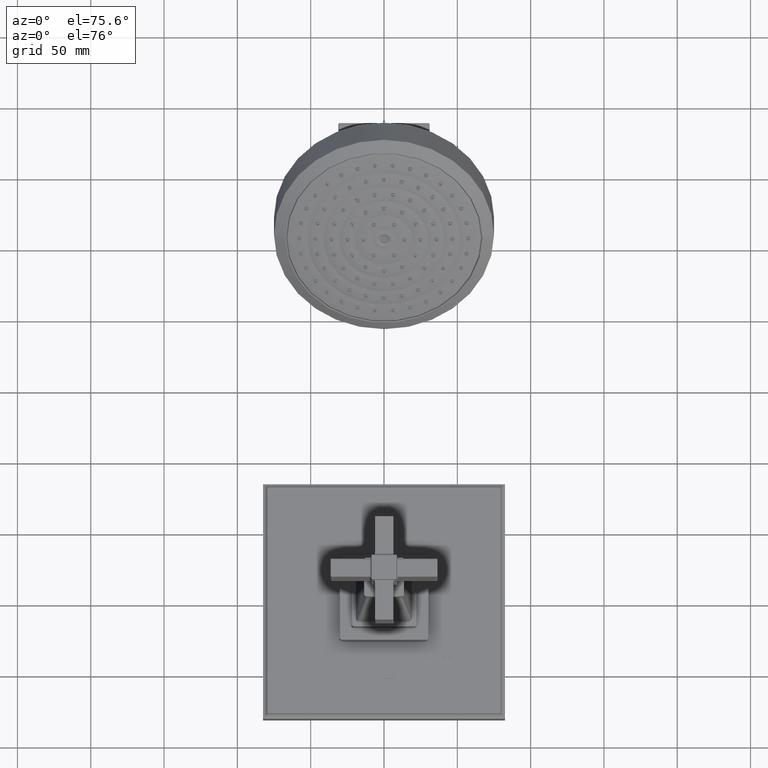
[diagram: clean part render]
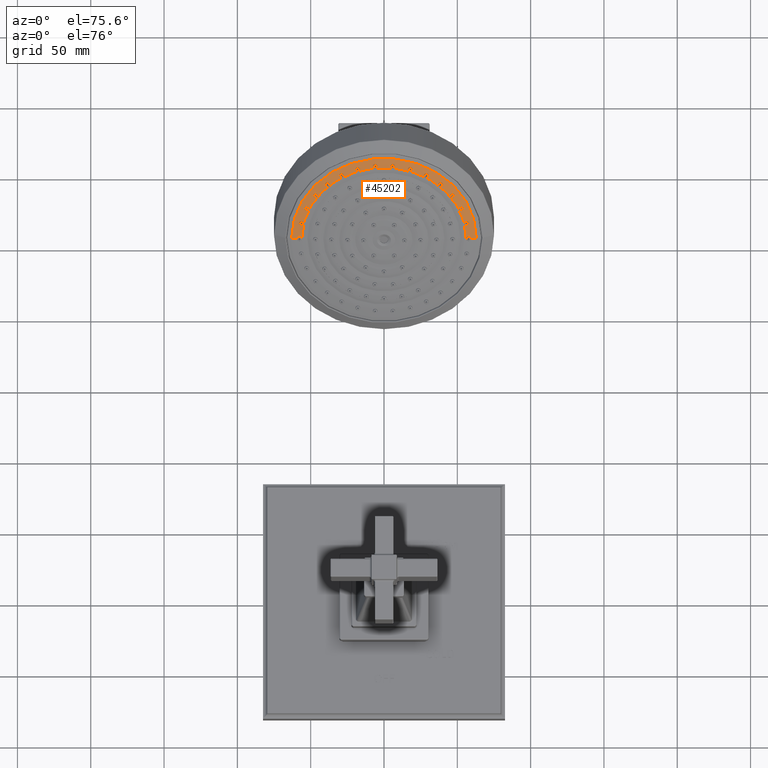
[diagram: same view with one face highlighted and labeled with its STEP entity id]
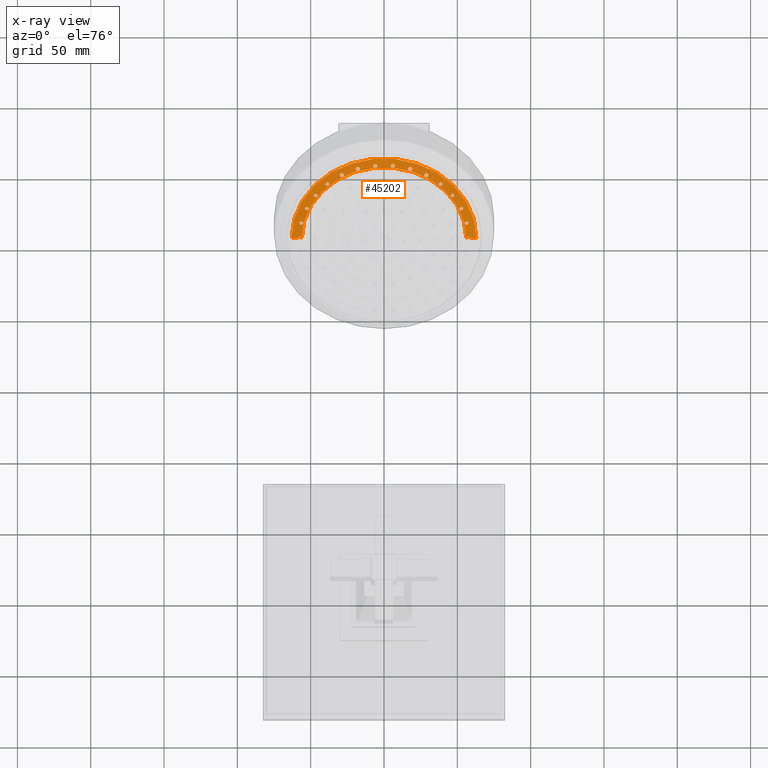
[diagram: x-ray of the same camera — body ghosted, the highlighted face saturated]
A machine part, auxiliary view. The second image highlights one B-rep face of the part: STEP entity #45202.
The next image is the same camera in x-ray: the body ghosted, the highlighted face saturated — about 0% of this face is hidden behind the body in this view.
In plain terms, the highlighted spherical surface has radius 619.733 mm.
Its self-contained STEP definition (entity closure, byte-faithful):
#27208=CARTESIAN_POINT('',(2.328477119466E0,8.441893513652E0,6.532980220501E0));
#27209=CARTESIAN_POINT('',(2.328477119466E0,8.444435503290E0,6.535522210139E0));
#27210=CARTESIAN_POINT('',(2.327806115332E0,8.449476790462E0,6.540652205004E0));
#27211=CARTESIAN_POINT('',(2.324834056388E0,8.456635144010E0,6.548203465920E0));
#27212=CARTESIAN_POINT('',(2.319964986621E0,8.463184328624E0,6.555396333552E0));
#27213=CARTESIAN_POINT('',(2.313413647380E0,8.468841618428E0,6.561919680344E0));
#27214=CARTESIAN_POINT('',(2.305325734597E0,8.473468261867E0,6.567615478009E0));
#27215=CARTESIAN_POINT('',(2.296083094937E0,8.476847508245E0,6.572216482481E0));
#27216=CARTESIAN_POINT('',(2.285864665380E0,8.478903752162E0,6.575623419795E0));
#27217=CARTESIAN_POINT('',(2.275202265711E0,8.479532453174E0,6.577661441558E0));
#27218=CARTESIAN_POINT('',(2.264289107166E0,8.478721594559E0,6.578292987154E0));
#27219=CARTESIAN_POINT('',(2.253753948990E0,8.476534532096E0,6.577498309646E0));
#27220=CARTESIAN_POINT('',(2.243761053883E0,8.473036831576E0,6.575321272639E0));
#27221=CARTESIAN_POINT('',(2.234803017807E0,8.468427629690E0,6.571895923105E0));
#27222=CARTESIAN_POINT('',(2.226986869612E0,8.462793338096E0,6.567294543557E0));
#27223=CARTESIAN_POINT('',(2.220640695689E0,8.456366037302E0,6.561705872905E0));
#27224=CARTESIAN_POINT('',(2.215903240440E0,8.449276901317E0,6.555242765606E0));
#27225=CARTESIAN_POINT('',(2.212997526472E0,8.441821033598E0,6.548170866246E0));
#27226=CARTESIAN_POINT('',(2.212336959181E0,8.436740872901E0,6.543177993917E0));
#27227=CARTESIAN_POINT('',(2.212336959181E0,8.434218306568E0,6.540655427585E0));
#27229=CARTESIAN_POINT('',(0.E0,2.561579682271E1,-1.064092308856E1));
#27230=DIRECTION('',(0.E0,-7.071067811865E-1,-7.071067811865E-1));
#27231=DIRECTION('',(9.067352907339E-2,-7.041939758069E-1,7.041939758069E-1));
#27232=AXIS2_PLACEMENT_3D('',#27229,#27230,#27231);
#27234=CARTESIAN_POINT('',(0.E0,8.434124516782E0,6.540749217371E0));
#27235=DIRECTION('',(0.E0,7.071067811865E-1,-7.071067811865E-1));
#27236=DIRECTION('',(-1.E0,0.E0,0.E0));
#27237=AXIS2_PLACEMENT_3D('',#27234,#27235,#27236);
#27239=CARTESIAN_POINT('',(0.E0,2.561579682271E1,-1.064092308856E1));
#27240=DIRECTION('',(0.E0,7.071067811865E-1,7.071067811865E-1));
#27241=DIRECTION('',(-9.067352907339E-2,-7.041939758069E-1,7.041939758069E-1));
#27242=AXIS2_PLACEMENT_3D('',#27239,#27240,#27241);
#27244=CARTESIAN_POINT('',(-2.212336959181E0,8.434218306568E0,
6.540655427585E0));
#27245=CARTESIAN_POINT('',(-2.212336959181E0,8.436754485402E0,
6.543191606418E0));
#27246=CARTESIAN_POINT('',(-2.213004631525E0,8.441859674237E0,
6.548208568015E0));
#27247=CARTESIAN_POINT('',(-2.215935978697E0,8.449343427930E0,
6.555304966088E0));
#27248=CARTESIAN_POINT('',(-2.220705462538E0,8.456446622154E0,
6.561777899108E0));
#27249=CARTESIAN_POINT('',(-2.227080226650E0,8.462872815793E0,
6.567361684214E0));
#27250=CARTESIAN_POINT('',(-2.234905809169E0,8.468489182058E0,
6.571943891260E0));
#27251=CARTESIAN_POINT('',(-2.243850190294E0,8.473072666446E0,
6.575345327376E0));
#27252=CARTESIAN_POINT('',(-2.253792355567E0,8.476542447435E0,
6.577501148962E0));
#27253=CARTESIAN_POINT('',(-2.264279568201E0,8.478718521362E0,
6.578291174632E0));
#27254=CARTESIAN_POINT('',(-2.275162001075E0,8.479531218379E0,
6.577665528660E0));
#27255=CARTESIAN_POINT('',(-2.285819265773E0,8.478909986157E0,
6.575635654701E0));
#27256=CARTESIAN_POINT('',(-2.296056166893E0,8.476855624396E0,
6.572228158128E0));
#27257=CARTESIAN_POINT('',(-2.305304358108E0,8.473478331604E0,
6.567628373497E0));
#27258=CARTESIAN_POINT('',(-2.313400544725E0,8.468851124383E0,
6.561930918393E0));
#27259=CARTESIAN_POINT('',(-2.319955379506E0,8.463194843844E0,
6.555408118805E0));
#27260=CARTESIAN_POINT('',(-2.324830308222E0,8.456642597383E0,
6.548211414803E0));
#27261=CARTESIAN_POINT('',(-2.327805382546E0,8.449480764633E0,
6.540656276050E0));
#27262=CARTESIAN_POINT('',(-2.328477119466E0,8.444436817590E0,
6.535523524440E0));
#27263=CARTESIAN_POINT('',(-2.328477119466E0,8.441893513652E0,
6.532980220501E0));
#27265=CARTESIAN_POINT('',(0.E0,2.561579682271E1,-1.064092308856E1));
#27266=DIRECTION('',(0.E0,7.071067811865E-1,7.071067811865E-1));
#27267=DIRECTION('',(-1.015786266074E-1,-7.034492812622E-1,7.034492812622E-1));
#27268=AXIS2_PLACEMENT_3D('',#27265,#27266,#27267);
#27270=CARTESIAN_POINT('',(0.E0,8.452388055572E0,6.522485678581E0));
#27271=DIRECTION('',(0.E0,-7.071067811865E-1,7.071067811865E-1));
#27272=DIRECTION('',(1.E0,0.E0,0.E0));
#27273=AXIS2_PLACEMENT_3D('',#27270,#27271,#27272);
#27275=CARTESIAN_POINT('',(0.E0,2.561579682271E1,-1.064092308856E1));
#27276=DIRECTION('',(0.E0,-7.071067811865E-1,-7.071067811865E-1));
#27277=DIRECTION('',(1.015786266074E-1,-7.034492812622E-1,7.034492812622E-1));
#27278=AXIS2_PLACEMENT_3D('',#27275,#27276,#27277);
#27280=CARTESIAN_POINT('',(-2.278863152143E0,8.775534252834E0,
6.866791061071E0));
#27281=CARTESIAN_POINT('',(-2.278857876825E0,8.772943035902E0,
6.864299316494E0));
#27282=CARTESIAN_POINT('',(-2.278176528631E0,8.767715426132E0,
6.859357461444E0));
#27283=CARTESIAN_POINT('',(-2.275188766665E0,8.760025461656E0,
6.852339689718E0));
#27284=CARTESIAN_POINT('',(-2.270300429807E0,8.752705363793E0,
6.845918737637E0));
#27285=CARTESIAN_POINT('',(-2.263737582073E0,8.746081629026E0,
6.840379962929E0));
#27286=CARTESIAN_POINT('',(-2.255626437079E0,8.740298572130E0,
6.835846152770E0));
#27287=CARTESIAN_POINT('',(-2.246372759441E0,8.735644335714E0,
6.832542985617E0));
#27288=CARTESIAN_POINT('',(-2.236129616652E0,8.732207849790E0,
6.830536576950E0));
#27289=CARTESIAN_POINT('',(-2.225482638612E0,8.730179739218E0,
6.829936008384E0));
#27290=CARTESIAN_POINT('',(-2.214615155125E0,8.729580397272E0,
6.830737648088E0));
#27291=CARTESIAN_POINT('',(-2.204146740365E0,8.730418057847E0,
6.832870854077E0));
#27292=CARTESIAN_POINT('',(-2.194205656788E0,8.732646927383E0,
6.836275326629E0));
#27293=CARTESIAN_POINT('',(-2.185260117267E0,8.736144169929E0,
6.840773555681E0));
#27294=CARTESIAN_POINT('',(-2.177422865008E0,8.740853061925E0,
6.846296699847E0));
#27295=CARTESIAN_POINT('',(-2.171058194178E0,8.746569268335E0,
6.852602035489E0));
#27296=CARTESIAN_POINT('',(-2.166304570201E0,8.753178217376E0,
6.859561813062E0));
#27297=CARTESIAN_POINT('',(-2.163393418759E0,8.760391719248E0,
6.866869491267E0));
#27298=CARTESIAN_POINT('',(-2.162728382609E0,8.765466681006E0,
6.871835349612E0));
#27299=CARTESIAN_POINT('',(-2.162723242490E0,8.768026784161E0,
6.874298529744E0));
#27301=CARTESIAN_POINT('',(-2.162723242490E0,8.768026784161E0,
6.874298529744E0));
#27302=CARTESIAN_POINT('',(-2.162718048165E0,8.770613884957E0,
6.876787685412E0));
#27303=CARTESIAN_POINT('',(-2.163376795794E0,8.775814311888E0,
6.881706380982E0));
#27304=CARTESIAN_POINT('',(-2.166280436191E0,8.783410245048E0,
6.888644636668E0));
#27305=CARTESIAN_POINT('',(-2.171005844578E0,8.790614388449E0,
6.894975026809E0));
#27306=CARTESIAN_POINT('',(-2.177325363493E0,8.797135042191E0,
6.900445821380E0));
#27307=CARTESIAN_POINT('',(-2.185125845645E0,8.802860767991E0,
6.904964161515E0));
#27308=CARTESIAN_POINT('',(-2.194076543171E0,8.807544716798E0,
6.908334534297E0));
#27309=CARTESIAN_POINT('',(-2.204091531377E0,8.811101000279E0,
6.910485209834E0));
#27310=CARTESIAN_POINT('',(-2.214651711421E0,8.813312127039E0,
6.911272810048E0));
#27311=CARTESIAN_POINT('',(-2.225594662814E0,8.814112018768E0,
6.910654372814E0));
#27312=CARTESIAN_POINT('',(-2.236268627209E0,8.813439449964E0,
6.908653671403E0));
#27313=CARTESIAN_POINT('',(-2.246499509594E0,8.811308696344E0,
6.905306529519E0));
#27314=CARTESIAN_POINT('',(-2.255737624275E0,8.807835307757E0,
6.900793825323E0));
#27315=CARTESIAN_POINT('',(-2.263831786681E0,8.803085999198E0,
6.895198923055E0));
#27316=CARTESIAN_POINT('',(-2.270375351262E0,8.797297292027E0,
6.888800920900E0));
#27317=CARTESIAN_POINT('',(-2.275241902649E0,8.790596359481E0,
6.881738191048E0));
#27318=CARTESIAN_POINT('',(-2.278205217365E0,8.783281757393E0,
6.874326608865E0));
#27319=CARTESIAN_POINT('',(-2.278868438505E0,8.778130894334E0,
6.869288021975E0));
#27320=CARTESIAN_POINT('',(-2.278863152143E0,8.775534252834E0,
6.866791061071E0));
#27322=CARTESIAN_POINT('',(-2.132189635155E0,9.094423345217E0,
7.186182711616E0));
#27323=CARTESIAN_POINT('',(-2.132179310588E0,9.091782221245E0,
7.183736269546E0));
#27324=CARTESIAN_POINT('',(-2.131486704708E0,9.086458087394E0,
7.178882744135E0));
#27325=CARTESIAN_POINT('',(-2.128478079866E0,9.078637794073E0,
7.171985354978E0));
#27326=CARTESIAN_POINT('',(-2.123565713663E0,9.071207905476E0,
7.165671224679E0));
#27327=CARTESIAN_POINT('',(-2.116976147033E0,9.064499581912E0,
7.160220884095E0));
#27328=CARTESIAN_POINT('',(-2.108839071673E0,9.058662025893E0,
7.155757504920E0));
#27329=CARTESIAN_POINT('',(-2.099566796421E0,9.053987523990E0,
7.152503991096E0));
#27330=CARTESIAN_POINT('',(-2.089322917228E0,9.050565809677E0,
7.150524468867E0));
#27331=CARTESIAN_POINT('',(-2.078705271560E0,9.048582104250E0,
7.149921054950E0));
#27332=CARTESIAN_POINT('',(-2.067893177993E0,9.048044628581E0,
7.150680519092E0));
#27333=CARTESIAN_POINT('',(-2.057473876924E0,9.048953027215E0,
7.152734241407E0));
#27334=CARTESIAN_POINT('',(-2.047559565893E0,9.051267089016E0,
7.156031921595E0));
#27335=CARTESIAN_POINT('',(-2.038612237945E0,9.054871216387E0,
7.160412710523E0));
#27336=CARTESIAN_POINT('',(-2.030760230893E0,9.059712871484E0,
7.165813005938E0));
#27337=CARTESIAN_POINT('',(-2.024389194391E0,9.065572378201E0,
7.171984378082E0));
#27338=CARTESIAN_POINT('',(-2.019638546927E0,9.072320904372E0,
7.178791221384E0));
#27339=CARTESIAN_POINT('',(-2.016728623112E0,9.079668242728E0,
7.185938956302E0));
#27340=CARTESIAN_POINT('',(-2.016060445526E0,9.084817903463E0,
7.190789229602E0));
#27341=CARTESIAN_POINT('',(-2.016050434053E0,9.087411754414E0,
7.193194302419E0));
#27343=CARTESIAN_POINT('',(-2.016050434053E0,9.087411754414E0,
7.193194302419E0));
#27344=CARTESIAN_POINT('',(-2.016040309278E0,9.090034960816E0,
7.195626594225E0));
#27345=CARTESIAN_POINT('',(-2.016684050027E0,9.095304040304E0,
7.200434959713E0));
#27346=CARTESIAN_POINT('',(-2.019545559929E0,9.102985953221E0,
7.207221522580E0));
#27347=CARTESIAN_POINT('',(-2.024216763425E0,9.110275985612E0,
7.213434398899E0));
#27348=CARTESIAN_POINT('',(-2.030496305211E0,9.116893635210E0,
7.218837032801E0));
#27349=CARTESIAN_POINT('',(-2.038295019332E0,9.122721772148E0,
7.223331229856E0));
#27350=CARTESIAN_POINT('',(-2.047285442437E0,9.127490698036E0,
7.226705122432E0));
#27351=CARTESIAN_POINT('',(-2.057368134030E0,9.131094637296E0,
7.228872242404E0));
#27352=CARTESIAN_POINT('',(-2.067985890445E0,9.133302234053E0,
7.229682994975E0));
#27353=CARTESIAN_POINT('',(-2.078957763639E0,9.134054917372E0,
7.229104154994E0));
#27354=CARTESIAN_POINT('',(-2.089637499782E0,9.133305383750E0,
7.227167076086E0));
#27355=CARTESIAN_POINT('',(-2.099863566193E0,9.131074663524E0,
7.223910056021E0));
#27356=CARTESIAN_POINT('',(-2.109095294273E0,9.127483897774E0,
7.219508279675E0));
#27357=CARTESIAN_POINT('',(-2.117186343462E0,9.122598783128E0,
7.214039672325E0));
#27358=CARTESIAN_POINT('',(-2.123726171439E0,9.116662393630E0,
7.207777277876E0));
#27359=CARTESIAN_POINT('',(-2.128586626269E0,9.109807605079E0,
7.200859155380E0));
#27360=CARTESIAN_POINT('',(-2.131544601479E0,9.102330428564E0,
7.193585590012E0));
#27361=CARTESIAN_POINT('',(-2.132199991122E0,9.097072501609E0,
7.188636594022E0));
#27362=CARTESIAN_POINT('',(-2.132189635155E0,9.094423345217E0,
7.186182711616E0));
#27364=CARTESIAN_POINT('',(-1.894866951678E0,9.384624247255E0,
7.477195784408E0));
#27365=CARTESIAN_POINT('',(-1.894852010633E0,9.381934120107E0,
7.474787388315E0));
#27366=CARTESIAN_POINT('',(-1.894147187642E0,9.376518191976E0,
7.470007055926E0));
#27367=CARTESIAN_POINT('',(-1.891115523609E0,9.368585583035E0,
7.463208044806E0));
#27368=CARTESIAN_POINT('',(-1.886174975050E0,9.361067463171E0,
7.456973817283E0));
#27369=CARTESIAN_POINT('',(-1.879553908493E0,9.354300590398E0,
7.451582893275E0));
#27370=CARTESIAN_POINT('',(-1.871378758973E0,9.348435248593E0,
7.447157078593E0));
#27371=CARTESIAN_POINT('',(-1.862093661971E0,9.343780701737E0,
7.443928405912E0));
#27372=CARTESIAN_POINT('',(-1.851878977E0,9.340416842048E0,7.441950169241E0));
#27373=CARTESIAN_POINT('',(-1.841322692185E0,9.338509448656E0,
7.441311296876E0));
#27374=CARTESIAN_POINT('',(-1.830581147384E0,9.338054129856E0,
7.441992022715E0));
#27375=CARTESIAN_POINT('',(-1.820193008914E0,9.339051127530E0,
7.443937985711E0));
#27376=CARTESIAN_POINT('',(-1.810277784794E0,9.341473492908E0,
7.447112947191E0));
#27377=CARTESIAN_POINT('',(-1.801311695970E0,9.345208951480E0,
7.451368075404E0));
#27378=CARTESIAN_POINT('',(-1.793453485381E0,9.350191036292E0,
7.456627747683E0));
#27379=CARTESIAN_POINT('',(-1.787077504747E0,9.356197672300E0,
7.462655081602E0));
#27380=CARTESIAN_POINT('',(-1.782333678859E0,9.363075364219E0,
7.469297371738E0));
#27381=CARTESIAN_POINT('',(-1.779417814162E0,9.370554173361E0,
7.476292938865E0));
#27382=CARTESIAN_POINT('',(-1.778743249589E0,9.375783318765E0,
7.481045948184E0));
#27383=CARTESIAN_POINT('',(-1.778728794520E0,9.378414984818E0,
7.483405046844E0));
#27385=CARTESIAN_POINT('',(-1.778728794520E0,9.378414984818E0,
7.483405046844E0));
#27386=CARTESIAN_POINT('',(-1.778714264181E0,9.381060354422E0,
7.485776429748E0));
#27387=CARTESIAN_POINT('',(-1.779339299174E0,9.386374856212E0,
7.490474189278E0));
#27388=CARTESIAN_POINT('',(-1.782154458518E0,9.394125434652E0,
7.497132369593E0));
#27389=CARTESIAN_POINT('',(-1.786781364841E0,9.401496629391E0,
7.503267016643E0));
#27390=CARTESIAN_POINT('',(-1.793045706060E0,9.408207411194E0,
7.508644020958E0));
#27391=CARTESIAN_POINT('',(-1.800884565934E0,9.414129209685E0,
7.513154568305E0));
#27392=CARTESIAN_POINT('',(-1.809939985662E0,9.418949469747E0,
7.516554931352E0));
#27393=CARTESIAN_POINT('',(-1.820080626091E0,9.422550702437E0,
7.518753170560E0));
#27394=CARTESIAN_POINT('',(-1.830721614156E0,9.424706553972E0,
7.519605800417E0));
#27395=CARTESIAN_POINT('',(-1.841681926753E0,9.425376288918E0,
7.519094690946E0));
#27396=CARTESIAN_POINT('',(-1.852350814072E0,9.424525553268E0,
7.517250995267E0));
#27397=CARTESIAN_POINT('',(-1.862569751584E0,9.422174700026E0,
7.514109033454E0));
#27398=CARTESIAN_POINT('',(-1.871799527076E0,9.418447679290E0,
7.509834523513E0));
#27399=CARTESIAN_POINT('',(-1.879880933497E0,9.413420060341E0,
7.504511314929E0));
#27400=CARTESIAN_POINT('',(-1.886423348256E0,9.407325987352E0,
7.498388769799E0));
#27401=CARTESIAN_POINT('',(-1.891277585213E0,9.400319109761E0,
7.491619657574E0));
#27402=CARTESIAN_POINT('',(-1.894234049583E0,9.392679192246E0,
7.484475844147E0));
#27403=CARTESIAN_POINT('',(-1.894881931182E0,9.387321298833E0,
7.479610379750E0));
#27404=CARTESIAN_POINT('',(-1.894866951678E0,9.384624247255E0,
7.477195784408E0));
#27406=CARTESIAN_POINT('',(-1.577267310327E0,9.633454433225E0,
7.727110965492E0));
#27407=CARTESIAN_POINT('',(-1.577248406150E0,9.630722452709E0,
7.724735445556E0));
#27408=CARTESIAN_POINT('',(-1.576533431855E0,9.625230052689E0,
7.720015657521E0));
#27409=CARTESIAN_POINT('',(-1.573479715799E0,9.617206834573E0,
7.713287198045E0));
#27410=CARTESIAN_POINT('',(-1.568514171915E0,9.609630565914E0,
7.707105693733E0));
#27411=CARTESIAN_POINT('',(-1.561866901109E0,9.602838369307E0,
7.701745439910E0));
#27412=CARTESIAN_POINT('',(-1.553673317971E0,9.596986362538E0,
7.697331075233E0));
#27413=CARTESIAN_POINT('',(-1.544393155141E0,9.592384343219E0,
7.694094146400E0));
#27414=CARTESIAN_POINT('',(-1.534220223140E0,9.589103446246E0,
7.692080532700E0));
#27415=CARTESIAN_POINT('',(-1.523715739306E0,9.587288551893E0,
7.691369905666E0));
#27416=CARTESIAN_POINT('',(-1.513015753984E0,9.586933022132E0,
7.691945255510E0));
#27417=CARTESIAN_POINT('',(-1.502643158158E0,9.588038151696E0,
7.693764489191E0));
#27418=CARTESIAN_POINT('',(-1.492712637333E0,9.590589884472E0,
7.696805906772E0));
#27419=CARTESIAN_POINT('',(-1.483743444644E0,9.594461468625E0,
7.700916294065E0));
#27420=CARTESIAN_POINT('',(-1.475877329515E0,9.599590111895E0,
7.706029298316E0));
#27421=CARTESIAN_POINT('',(-1.469511815995E0,9.605722782056E0,
7.711891878624E0));
#27422=CARTESIAN_POINT('',(-1.464760935757E0,9.612732232611E0,
7.718383879021E0));
#27423=CARTESIAN_POINT('',(-1.461836324587E0,9.620324015546E0,
7.725231580677E0));
#27424=CARTESIAN_POINT('',(-1.461148707857E0,9.625641999011E0,
7.729915792659E0));
#27425=CARTESIAN_POINT('',(-1.461130351981E0,9.628318863384E0,
7.732246535333E0));
#27427=CARTESIAN_POINT('',(-1.461130351981E0,9.628318863384E0,
7.732246535333E0));
#27428=CARTESIAN_POINT('',(-1.461112127908E0,9.630976506868E0,
7.734560542401E0));
#27429=CARTESIAN_POINT('',(-1.461717795436E0,9.636322172264E0,
7.739161886835E0));
#27430=CARTESIAN_POINT('',(-1.464499581596E0,9.644144415386E0,
7.745738201517E0));
#27431=CARTESIAN_POINT('',(-1.469111449144E0,9.651597037907E0,
7.751841524631E0));
#27432=CARTESIAN_POINT('',(-1.475396647797E0,9.658386791561E0,
7.757229648120E0));
#27433=CARTESIAN_POINT('',(-1.483295166470E0,9.664362554685E0,
7.761776036244E0));
#27434=CARTESIAN_POINT('',(-1.492415233092E0,9.669182776257E0,
7.765215901583E0));
#27435=CARTESIAN_POINT('',(-1.502591301300E0,9.672727644506E0,
7.767458693294E0));
#27436=CARTESIAN_POINT('',(-1.513236295701E0,9.674790292576E0,
7.768372982071E0));
#27437=CARTESIAN_POINT('',(-1.524179182204E0,9.675343476680E0,
7.767949224524E0));
#27438=CARTESIAN_POINT('',(-1.534825601186E0,9.674364742561E0,
7.766217058033E0));
#27439=CARTESIAN_POINT('',(-1.545033390848E0,9.671871079513E0,
7.763203037599E0));
#27440=CARTESIAN_POINT('',(-1.554245619455E0,9.667997904468E0,
7.759071063579E0));
#27441=CARTESIAN_POINT('',(-1.562321684431E0,9.662812546790E0,
7.753891353801E0));
#27442=CARTESIAN_POINT('',(-1.568849965010E0,9.656570771203E0,
7.747920492167E0));
#27443=CARTESIAN_POINT('',(-1.573701672004E0,9.649405116064E0,
7.741284445257E0));
#27444=CARTESIAN_POINT('',(-1.576644621329E0,9.641632778145E0,
7.734278395955E0));
#27445=CARTESIAN_POINT('',(-1.577286243977E0,9.636190673115E0,
7.729490189050E0));
#27446=CARTESIAN_POINT('',(-1.577267310327E0,9.633454433225E0,
7.727110965492E0));
#27448=CARTESIAN_POINT('',(-1.193271417773E0,9.830039568523E0,
7.925005023688E0));
#27449=CARTESIAN_POINT('',(-1.193249407421E0,9.827277445309E0,
7.922657931639E0));
#27450=CARTESIAN_POINT('',(-1.192528025328E0,9.821730455133E0,
7.917985812340E0));
#27451=CARTESIAN_POINT('',(-1.189455638224E0,9.813640331002E0,
7.911295134972E0));
#27452=CARTESIAN_POINT('',(-1.184463256244E0,9.806030818871E0,
7.905130424610E0));
#27453=CARTESIAN_POINT('',(-1.177806146485E0,9.799258714675E0,
7.899779436929E0));
#27454=CARTESIAN_POINT('',(-1.169634761804E0,9.793471199538E0,
7.895358118937E0));
#27455=CARTESIAN_POINT('',(-1.160420611517E0,9.788963055923E0,
7.892088295998E0));
#27456=CARTESIAN_POINT('',(-1.150323921144E0,9.785778983816E0,
7.889998193897E0));
#27457=CARTESIAN_POINT('',(-1.139876862872E0,9.784055851247E0,
7.889171670420E0));
#27458=CARTESIAN_POINT('',(-1.129177441546E0,9.783797779513E0,
7.889606253859E0));
#27459=CARTESIAN_POINT('',(-1.118797646598E0,9.785014337318E0,
7.891275128940E0));
#27460=CARTESIAN_POINT('',(-1.108849077293E0,9.787691308337E0,
7.894159395455E0));
#27461=CARTESIAN_POINT('',(-1.099870031347E0,9.791689470084E0,
7.898107776765E0));
#27462=CARTESIAN_POINT('',(-1.091991555490E0,9.796943507730E0,
7.903056726030E0));
#27463=CARTESIAN_POINT('',(-1.085608258834E0,9.803194461464E0,
7.908761929606E0));
#27464=CARTESIAN_POINT('',(-1.080825851047E0,9.810326594408E0,
7.915118507411E0));
#27465=CARTESIAN_POINT('',(-1.077864117677E0,9.818048151808E0,
7.921864940658E0));
#27466=CARTESIAN_POINT('',(-1.077157226723E0,9.823470643664E0,
7.926518696959E0));
#27467=CARTESIAN_POINT('',(-1.077135605822E0,9.826202113269E0,
7.928842478943E0));
#27469=CARTESIAN_POINT('',(-1.077135605822E0,9.826202113269E0,
7.928842478943E0));
#27470=CARTESIAN_POINT('',(-1.077114492562E0,9.828869450220E0,
7.931111700442E0));
#27471=CARTESIAN_POINT('',(-1.077704551834E0,9.834245257997E0,
7.935646452688E0));
#27472=CARTESIAN_POINT('',(-1.080480279219E0,9.842155819546E0,
7.942202737256E0));
#27473=CARTESIAN_POINT('',(-1.085124335451E0,9.849694240869E0,
7.948328336412E0));
#27474=CARTESIAN_POINT('',(-1.091470640615E0,9.856532740812E0,
7.953754705591E0));
#27475=CARTESIAN_POINT('',(-1.099431479098E0,9.862497999205E0,
7.958339845337E0));
#27476=CARTESIAN_POINT('',(-1.108583527151E0,9.867247993187E0,
7.961818846031E0));
#27477=CARTESIAN_POINT('',(-1.118745195236E0,9.870680136989E0,7.964115602E0));
#27478=CARTESIAN_POINT('',(-1.129364779086E0,9.872616595592E0,
7.965112662706E0));
#27479=CARTESIAN_POINT('',(-1.140288279439E0,9.873031409924E0,
7.964797389541E0));
#27480=CARTESIAN_POINT('',(-1.150914804635E0,9.871906177314E0,
7.963190893198E0));
#27481=CARTESIAN_POINT('',(-1.161100390418E0,9.869260543782E0,
7.960318690399E0));
#27482=CARTESIAN_POINT('',(-1.170296916726E0,9.865234730881E0,
7.956333521692E0));
#27483=CARTESIAN_POINT('',(-1.178359395766E0,9.859898292337E0,
7.951303387737E0));
#27484=CARTESIAN_POINT('',(-1.184879710460E0,9.853510010286E0,
7.945473258635E0));
#27485=CARTESIAN_POINT('',(-1.189723118255E0,9.846208015241E0,
7.938968803277E0));
#27486=CARTESIAN_POINT('',(-1.192657888938E0,9.838314753399E0,
7.932078326847E0));
#27487=CARTESIAN_POINT('',(-1.193293458999E0,9.832805566248E0,
7.927355408071E0));
#27488=CARTESIAN_POINT('',(-1.193271417773E0,9.830039568523E0,
7.925005023688E0));
#27490=CARTESIAN_POINT('',(-7.596618115317E-1,9.965788640807E0,
8.062228337663E0));
#27491=CARTESIAN_POINT('',(-7.596376535107E-1,9.963004147322E0,
8.059899372190E0));
#27492=CARTESIAN_POINT('',(-7.589111717124E-1,9.957423176903E0,
8.055256836428E0));
#27493=CARTESIAN_POINT('',(-7.558291635589E-1,9.949311222442E0,
8.048584842896E0));
#27494=CARTESIAN_POINT('',(-7.508350555207E-1,9.941721977803E0,
8.042421887665E0));
#27495=CARTESIAN_POINT('',(-7.441974117767E-1,9.935011368075E0,
8.037055722172E0));
#27496=CARTESIAN_POINT('',(-7.360843993758E-1,9.929320762003E0,
8.032598340233E0));
#27497=CARTESIAN_POINT('',(-7.269419764668E-1,9.924913760856E0,
8.029253600616E0));
#27498=CARTESIAN_POINT('',(-7.169136943648E-1,9.921829339742E0,
8.027048747893E0));
#27499=CARTESIAN_POINT('',(-7.065018590439E-1,9.920200671375E0,
8.026076392847E0));
#27500=CARTESIAN_POINT('',(-6.958093106626E-1,9.920044088102E0,
8.026346357355E0));
#27501=CARTESIAN_POINT('',(-6.854196423044E-1,9.921370251029E0,
8.027845684736E0));
#27502=CARTESIAN_POINT('',(-6.754628125261E-1,9.924160578029E0,
8.030553955928E0));
#27503=CARTESIAN_POINT('',(-6.664686479544E-1,9.928268859153E0,
8.034328955186E0));
#27504=CARTESIAN_POINT('',(-6.585646661049E-1,9.933629309278E0,
8.039110846349E0));
#27505=CARTESIAN_POINT('',(-6.521363072375E-1,9.939989891205E0,
8.044674266202E0));
#27506=CARTESIAN_POINT('',(-6.472960720258E-1,9.947244254917E0,
8.050925991513E0));
#27507=CARTESIAN_POINT('',(-6.442792214328E-1,9.955103356865E0,
8.057615322571E0));
#27508=CARTESIAN_POINT('',(-6.435509646114E-1,9.960631303812E0,
8.062268172922E0));
#27509=CARTESIAN_POINT('',(-6.435268953440E-1,9.963416981908E0,
8.064599996561E0));
#27511=CARTESIAN_POINT('',(-6.435268953440E-1,9.963416981908E0,
8.064599996561E0));
#27512=CARTESIAN_POINT('',(-6.435036559859E-1,9.966106609725E0,
8.066851418837E0));
#27513=CARTESIAN_POINT('',(-6.440900430691E-1,9.971528829136E0,
8.071366460990E0));
#27514=CARTESIAN_POINT('',(-6.468877645053E-1,9.979518301728E0,
8.077946654965E0));
#27515=CARTESIAN_POINT('',(-6.515881697899E-1,9.987107999505E0,
8.084120918305E0));
#27516=CARTESIAN_POINT('',(-6.579984256550E-1,9.993937471013E0,
8.089594884575E0));
#27517=CARTESIAN_POINT('',(-6.660017646926E-1,9.999829982095E0,
8.094225063404E0));
#27518=CARTESIAN_POINT('',(-6.751605965657E-1,1.000446271719E1,
8.097757775372E0));
#27519=CARTESIAN_POINT('',(-6.853108847019E-1,1.000775505813E1,
8.100131734903E0));
#27520=CARTESIAN_POINT('',(-6.959034637045E-1,1.000954087078E1,
8.101228552219E0));
#27521=CARTESIAN_POINT('',(-7.068082719506E-1,1.000979798508E1,
8.101034569974E0));
#27522=CARTESIAN_POINT('',(-7.174083616778E-1,1.000851361764E1,
8.099562246969E0));
#27523=CARTESIAN_POINT('',(-7.275702947536E-1,1.000570902161E1,
8.096834376156E0));
#27524=CARTESIAN_POINT('',(-7.367453978152E-1,1.000153175022E1,
8.092994999340E0));
#27525=CARTESIAN_POINT('',(-7.447933435715E-1,9.996048902167E0,
8.088105516038E0));
#27526=CARTESIAN_POINT('',(-7.512986446591E-1,9.989530722134E0,
8.082407618822E0));
#27527=CARTESIAN_POINT('',(-7.561316911387E-1,9.982111701091E0,
8.076018685883E0));
#27528=CARTESIAN_POINT('',(-7.590555857951E-1,9.974126704494E0,
8.069227776558E0));
#27529=CARTESIAN_POINT('',(-7.596859651609E-1,9.968572628090E0,
8.064556879745E0));
#27530=CARTESIAN_POINT('',(-7.596618115317E-1,9.965788640807E0,
8.062228337663E0));
#27532=CARTESIAN_POINT('',(-2.953893696077E-1,1.003476930654E1,
8.132783047802E0));
#27533=CARTESIAN_POINT('',(-2.953639330590E-1,1.003195128577E1,
8.130444663191E0));
#27534=CARTESIAN_POINT('',(-2.946211667081E-1,1.002633271161E1,
8.125791117779E0));
#27535=CARTESIAN_POINT('',(-2.915487017396E-1,1.001828859834E1,
8.119153977967E0));
#27536=CARTESIAN_POINT('',(-2.865763222637E-1,1.001076724979E1,
8.112974656870E0));
#27537=CARTESIAN_POINT('',(-2.799966342187E-1,1.000416721878E1,
8.107580236549E0));
#27538=CARTESIAN_POINT('',(-2.719757184217E-1,9.998598123228E0,
8.103059607882E0));
#27539=CARTESIAN_POINT('',(-2.629092078710E-1,9.994293481685E0,
8.099601591354E0));
#27540=CARTESIAN_POINT('',(-2.529176552515E-1,9.991301179823E0,
8.097244419943E0));
#27541=CARTESIAN_POINT('',(-2.425113488837E-1,9.989768020587E0,
8.096103494324E0));
#27542=CARTESIAN_POINT('',(-2.318187742908E-1,9.989716313707E0,
8.096195714460E0));
#27543=CARTESIAN_POINT('',(-2.214179520183E-1,9.991150053590E0,
8.097517093267E0));
#27544=CARTESIAN_POINT('',(-2.114462900044E-1,9.994047785534E0,
8.100048085504E0));
#27545=CARTESIAN_POINT('',(-2.024277517623E-1,9.998257553365E0,
8.103655946311E0));
#27546=CARTESIAN_POINT('',(-1.944779614659E-1,1.000372131875E1,
8.108291034381E0));
#27547=CARTESIAN_POINT('',(-1.879778086945E-1,1.001020445920E1,
8.113753798743E0));
#27548=CARTESIAN_POINT('',(-1.830693218710E-1,1.001759744112E1,
8.119951522946E0));
#27549=CARTESIAN_POINT('',(-1.800140283151E-1,1.002558334667E1,
8.126617866350E0));
#27550=CARTESIAN_POINT('',(-1.792802162464E-1,1.003116333924E1,
8.131258098002E0));
#27551=CARTESIAN_POINT('',(-1.792549436812E-1,1.003396706982E1,
8.133585284522E0));
#27553=CARTESIAN_POINT('',(-1.792549436812E-1,1.003396706982E1,
8.133585284522E0));
#27554=CARTESIAN_POINT('',(-1.792303437057E-1,1.003669618350E1,
8.135850536616E0));
#27555=CARTESIAN_POINT('',(-1.798275257702E-1,1.004218571900E1,
8.140398835933E0));
#27556=CARTESIAN_POINT('',(-1.826773705557E-1,1.005023656026E1,
8.147044272648E0));
#27557=CARTESIAN_POINT('',(-1.874495532815E-1,1.005782698223E1,
8.153283252170E0));
#27558=CARTESIAN_POINT('',(-1.939186911464E-1,1.006458575560E1,
8.158810549250E0));
#27559=CARTESIAN_POINT('',(-2.019371621811E-1,1.007034648840E1,
8.163489955518E0));
#27560=CARTESIAN_POINT('',(-2.110909507427E-1,1.007482904182E1,
8.167094235743E0));
#27561=CARTESIAN_POINT('',(-2.212346552569E-1,1.007796092285E1,
8.169565082288E0));
#27562=CARTESIAN_POINT('',(-2.318184920372E-1,1.007957939646E1,
8.170774407360E0));
#27563=CARTESIAN_POINT('',(-2.427007425799E-1,1.007966358888E1,
8.170706688544E0));
#27564=CARTESIAN_POINT('',(-2.532848025147E-1,1.007820969552E1,
8.169366314713E0));
#27565=CARTESIAN_POINT('',(-2.634289615980E-1,1.007523849392E1,
8.166772317959E0));
#27566=CARTESIAN_POINT('',(-2.725868904194E-1,1.007090472207E1,
8.163060012074E0));
#27567=CARTESIAN_POINT('',(-2.806153319320E-1,1.006527859763E1,
8.158289468571E0));
#27568=CARTESIAN_POINT('',(-2.871056434891E-1,1.005862862710E1,
8.152688669061E0));
#27569=CARTESIAN_POINT('',(-2.919123338101E-1,1.005110640419E1,
8.146385243614E0));
#27570=CARTESIAN_POINT('',(-2.948012513711E-1,1.004306733929E1,
8.139677092042E0));
#27571=CARTESIAN_POINT('',(-2.954143090486E-1,1.003753225459E1,
8.135075733239E0));
#27572=CARTESIAN_POINT('',(-2.953893696077E-1,1.003476930654E1,
8.132783047802E0));
#27574=CARTESIAN_POINT('',(1.792549436812E-1,1.003396706982E1,
8.133585284522E0));
#27575=CARTESIAN_POINT('',(1.792802138184E-1,1.003116360860E1,
8.131258321582E0));
#27576=CARTESIAN_POINT('',(1.800138194089E-1,1.002558458118E1,
8.126618893541E0));
#27577=CARTESIAN_POINT('',(1.830680759269E-1,1.001760050604E1,
8.119954082365E0));
#27578=CARTESIAN_POINT('',(1.879724141382E-1,1.001021142903E1,
8.113759651428E0));
#27579=CARTESIAN_POINT('',(1.944695971870E-1,1.000372828313E1,
8.108296920126E0));
#27580=CARTESIAN_POINT('',(2.024177898020E-1,9.998263127959E0,
8.103660698821E0));
#27581=CARTESIAN_POINT('',(2.114377730823E-1,9.994050835779E0,
8.100050724688E0));
#27582=CARTESIAN_POINT('',(2.214111913362E-1,9.991151320029E0,
8.097518229790E0));
#27583=CARTESIAN_POINT('',(2.318163830553E-1,9.989716249062E0,
8.096195691029E0));
#27584=CARTESIAN_POINT('',(2.425128505223E-1,9.989767991498E0,
8.096103451204E0));
#27585=CARTESIAN_POINT('',(2.529225840622E-1,9.991302006911E0,
8.097245044093E0));
#27586=CARTESIAN_POINT('',(2.629186233579E-1,9.994296984330E0,
8.099604379358E0));
#27587=CARTESIAN_POINT('',(2.719825796465E-1,9.998602250761E0,
8.103062946770E0));
#27588=CARTESIAN_POINT('',(2.800007119518E-1,1.000417083964E1,
8.107583190089E0));
#27589=CARTESIAN_POINT('',(2.865776971E-1,1.001076911895E1,8.112976190769E0));
#27590=CARTESIAN_POINT('',(2.915493359651E-1,1.001828996993E1,
8.119155108260E0));
#27591=CARTESIAN_POINT('',(2.946211135869E-1,1.002633283290E1,
8.125791219107E0));
#27592=CARTESIAN_POINT('',(2.953639328403E-1,1.003195126155E1,
8.130444643091E0));
#27593=CARTESIAN_POINT('',(2.953893696077E-1,1.003476930654E1,
8.132783047802E0));
#27595=CARTESIAN_POINT('',(2.953893696077E-1,1.003476930654E1,
8.132783047802E0));
#27596=CARTESIAN_POINT('',(2.954143198303E-1,1.003753344906E1,
8.135076724408E0));
#27597=CARTESIAN_POINT('',(2.948006779797E-1,1.004307020907E1,
8.139679480938E0));
#27598=CARTESIAN_POINT('',(2.919109219186E-1,1.005110915758E1,
8.146387546491E0));
#27599=CARTESIAN_POINT('',(2.871043372318E-1,1.005862997479E1,
8.152689804012E0));
#27600=CARTESIAN_POINT('',(2.806160493937E-1,1.006527787301E1,
8.158288858148E0));
#27601=CARTESIAN_POINT('',(2.725878123980E-1,1.007090416934E1,
8.163059541708E0));
#27602=CARTESIAN_POINT('',(2.634315138302E-1,1.007523740173E1,
8.166771379300E0));
#27603=CARTESIAN_POINT('',(2.532895176725E-1,1.007820861062E1,
8.169365354761E0));
#27604=CARTESIAN_POINT('',(2.427071848855E-1,1.007966308775E1,
8.170706191223E0));
#27605=CARTESIAN_POINT('',(2.318270420083E-1,1.007957997376E1,
8.170774778348E0));
#27606=CARTESIAN_POINT('',(2.212439850171E-1,1.007796310097E1,
8.169566771911E0));
#27607=CARTESIAN_POINT('',(2.110981615653E-1,1.007483188534E1,
8.167096504374E0));
#27608=CARTESIAN_POINT('',(2.019459271348E-1,1.007035148048E1,
8.163493987572E0));
#27609=CARTESIAN_POINT('',(1.939277964605E-1,1.006459355063E1,
8.158816903178E0));
#27610=CARTESIAN_POINT('',(1.874561225800E-1,1.005783556331E1,
8.153290290558E0));
#27611=CARTESIAN_POINT('',(1.826806489129E-1,1.005024373859E1,
8.147050188545E0));
#27612=CARTESIAN_POINT('',(1.798283440101E-1,1.004219051382E1,
8.140402804881E0));
#27613=CARTESIAN_POINT('',(1.792303279349E-1,1.003669793311E1,
8.135851988846E0));
#27614=CARTESIAN_POINT('',(1.792549436812E-1,1.003396706982E1,
8.133585284522E0));
#27616=CARTESIAN_POINT('',(6.435268953440E-1,9.963416981908E0,
8.064599996561E0));
#27617=CARTESIAN_POINT('',(6.435509383684E-1,9.960634341076E0,
8.062270715342E0));
#27618=CARTESIAN_POINT('',(6.442776844660E-1,9.955111814263E0,
8.057622456995E0));
#27619=CARTESIAN_POINT('',(6.472891730223E-1,9.947258487994E0,
8.050938159958E0));
#27620=CARTESIAN_POINT('',(6.521229664100E-1,9.940006311776E0,
8.044688506721E0));
#27621=CARTESIAN_POINT('',(6.585471842406E-1,9.933643289547E0,
8.039123200245E0));
#27622=CARTESIAN_POINT('',(6.664551273678E-1,9.928275781436E0,
8.034335254617E0));
#27623=CARTESIAN_POINT('',(6.754581235064E-1,9.924161600907E0,
8.030554987692E0));
#27624=CARTESIAN_POINT('',(6.854285420869E-1,9.921367761008E0,
8.027843267394E0));
#27625=CARTESIAN_POINT('',(6.958319693669E-1,9.920042218809E0,
8.026343943443E0));
#27626=CARTESIAN_POINT('',(7.065356998071E-1,9.920203191874E0,
8.026077232838E0));
#27627=CARTESIAN_POINT('',(7.169523690662E-1,9.921837910358E0,
8.027054469126E0));
#27628=CARTESIAN_POINT('',(7.269823674063E-1,9.924929692899E0,
8.029265417201E0));
#27629=CARTESIAN_POINT('',(7.361119622416E-1,9.929337683351E0,
8.032611465609E0));
#27630=CARTESIAN_POINT('',(7.442110189855E-1,9.935023816955E0,
8.037065628472E0));
#27631=CARTESIAN_POINT('',(7.508388675768E-1,9.941727488089E0,
8.042426355400E0));
#27632=CARTESIAN_POINT('',(7.558295269381E-1,9.949312629928E0,
8.048586006962E0));
#27633=CARTESIAN_POINT('',(7.589104733548E-1,9.957420922781E0,
8.055254976513E0));
#27634=CARTESIAN_POINT('',(7.596376431165E-1,9.963002949271E0,
8.059898370134E0));
#27635=CARTESIAN_POINT('',(7.596618115317E-1,9.965788640807E0,
8.062228337663E0));
#27637=CARTESIAN_POINT('',(7.596618115317E-1,9.965788640807E0,
8.062228337663E0));
#27638=CARTESIAN_POINT('',(7.596859572809E-1,9.968571719832E0,
8.064556120073E0));
#27639=CARTESIAN_POINT('',(7.590560134269E-1,9.974123960155E0,
8.069225464256E0));
#27640=CARTESIAN_POINT('',(7.561340202828E-1,9.982106596962E0,
8.076014327780E0));
#27641=CARTESIAN_POINT('',(7.513042293220E-1,9.989523410557E0,
8.082401291603E0));
#27642=CARTESIAN_POINT('',(7.448039937326E-1,9.996039868767E0,
8.088097558136E0));
#27643=CARTESIAN_POINT('',(7.367598064492E-1,1.000152351383E1,
8.092987567318E0));
#27644=CARTESIAN_POINT('',(7.275900980895E-1,1.000570163503E1,
8.096827452788E0));
#27645=CARTESIAN_POINT('',(7.174330496126E-1,1.000850859311E1,
8.099557116692E0));
#27646=CARTESIAN_POINT('',(7.068375007407E-1,1.000979641712E1,
8.101032161478E0));
#27647=CARTESIAN_POINT('',(6.959356042120E-1,1.000954374203E1,
8.101229748816E0));
#27648=CARTESIAN_POINT('',(6.853453673512E-1,1.000776347393E1,
8.100137482874E0));
#27649=CARTESIAN_POINT('',(6.751911609887E-1,1.000447514266E1,
8.097767025343E0));
#27650=CARTESIAN_POINT('',(6.660350869503E-1,9.999849924006E0,
8.094240499184E0));
#27651=CARTESIAN_POINT('',(6.580286324653E-1,9.993964074345E0,
8.089616011176E0));
#27652=CARTESIAN_POINT('',(6.516101404344E-1,9.987137125876E0,
8.084144465180E0));
#27653=CARTESIAN_POINT('',(6.468981038307E-1,9.979541598165E0,
8.077965760215E0));
#27654=CARTESIAN_POINT('',(6.440922863976E-1,9.971542744854E0,
8.071378020791E0));
#27655=CARTESIAN_POINT('',(6.435036135410E-1,9.966111522126E0,
8.066855530889E0));
#27656=CARTESIAN_POINT('',(6.435268953440E-1,9.963416981908E0,
8.064599996561E0));
#27658=CARTESIAN_POINT('',(1.077135605822E0,9.826202113269E0,7.928842478943E0));
#27659=CARTESIAN_POINT('',(1.077157176241E0,9.823477021355E0,7.926524122743E0));
#27660=CARTESIAN_POINT('',(1.077860659350E0,9.818064101320E0,7.921878713369E0));
#27661=CARTESIAN_POINT('',(1.080817106742E0,9.810343683119E0,7.915133571934E0));
#27662=CARTESIAN_POINT('',(1.085594656641E0,9.803210114656E0,7.908776070535E0));
#27663=CARTESIAN_POINT('',(1.091984221570E0,9.796948254785E0,7.903061210621E0));
#27664=CARTESIAN_POINT('',(1.099875349851E0,9.791685211784E0,7.898103830943E0));
#27665=CARTESIAN_POINT('',(1.108878241378E0,9.787679969036E0,7.894147971278E0));
#27666=CARTESIAN_POINT('',(1.118843229023E0,9.785004807792E0,7.891264240004E0));
#27667=CARTESIAN_POINT('',(1.129242829502E0,9.783794450216E0,7.889599426169E0));
#27668=CARTESIAN_POINT('',(1.139938560376E0,9.784061889281E0,7.889173033016E0));
#27669=CARTESIAN_POINT('',(1.150378897479E0,9.785792899146E0,7.890006665019E0));
#27670=CARTESIAN_POINT('',(1.160448428635E0,9.788975218931E0,7.892096937264E0));
#27671=CARTESIAN_POINT('',(1.169649971017E0,9.793481062254E0,7.895365574989E0));
#27672=CARTESIAN_POINT('',(1.177806777774E0,9.799259930524E0,7.899780432098E0));
#27673=CARTESIAN_POINT('',(1.184464509480E0,9.806032191984E0,7.905131515478E0));
#27674=CARTESIAN_POINT('',(1.189456298049E0,9.813641398871E0,7.911296002578E0));
#27675=CARTESIAN_POINT('',(1.192529136758E0,9.821734559662E0,7.917989234199E0));
#27676=CARTESIAN_POINT('',(1.193249421306E0,9.827279187732E0,7.922659412250E0));
#27677=CARTESIAN_POINT('',(1.193271417773E0,9.830039568523E0,7.925005023688E0));
#27679=CARTESIAN_POINT('',(1.193271417773E0,9.830039568523E0,7.925005023688E0));
#27680=CARTESIAN_POINT('',(1.193293441669E0,9.832803391535E0,7.927353560126E0));
#27681=CARTESIAN_POINT('',(1.192658978641E0,9.838308225959E0,7.932072710422E0));
#27682=CARTESIAN_POINT('',(1.189728373833E0,9.846196557270E0,7.938958740110E0));
#27683=CARTESIAN_POINT('',(1.184893119948E0,9.853492890121E0,7.945457882806E0));
#27684=CARTESIAN_POINT('',(1.178383420646E0,9.859878368509E0,7.951284979096E0));
#27685=CARTESIAN_POINT('',(1.170331470856E0,9.865215534683E0,7.956315087839E0));
#27686=CARTESIAN_POINT('',(1.161147253921E0,9.869243859898E0,7.960301639827E0));
#27687=CARTESIAN_POINT('',(1.150974090724E0,9.871895008184E0,7.963177771709E0));
#27688=CARTESIAN_POINT('',(1.140358119436E0,9.873028687120E0,7.964790803915E0));
#27689=CARTESIAN_POINT('',(1.129441605440E0,9.872624561367E0,7.965114737583E0));
#27690=CARTESIAN_POINT('',(1.118830256994E0,9.870701433070E0,7.964128507189E0));
#27691=CARTESIAN_POINT('',(1.108670435016E0,9.867284468922E0,7.961844544760E0));
#27692=CARTESIAN_POINT('',(1.099509808592E0,9.86254716E0,7.958376854209E0));
#27693=CARTESIAN_POINT('',(1.091528121076E0,9.856585448786E0,7.953796005602E0));
#27694=CARTESIAN_POINT('',(1.085156597765E0,9.849738834369E0,7.948364279377E0));
#27695=CARTESIAN_POINT('',(1.080491303898E0,9.842182655428E0,7.942224880513E0));
#27696=CARTESIAN_POINT('',(1.077705383211E0,9.834254008114E0,7.935653841726E0));
#27697=CARTESIAN_POINT('',(1.077114475930E0,9.828871551405E0,7.931113488013E0));
#27698=CARTESIAN_POINT('',(1.077135605822E0,9.826202113269E0,7.928842478943E0));
#27700=CARTESIAN_POINT('',(1.461130351981E0,9.628318863384E0,7.732246535333E0));
#27701=CARTESIAN_POINT('',(1.461148680156E0,9.625646038669E0,7.729919309985E0));
#27702=CARTESIAN_POINT('',(1.461833512375E0,9.620331798285E0,7.725238585242E0));
#27703=CARTESIAN_POINT('',(1.464764461380E0,9.612723945474E0,7.718376376574E0));
#27704=CARTESIAN_POINT('',(1.469520870555E0,9.605709425015E0,7.711879507503E0));
#27705=CARTESIAN_POINT('',(1.475920747455E0,9.599553644054E0,7.705993976407E0));
#27706=CARTESIAN_POINT('',(1.483806017931E0,9.594426622645E0,7.700880799662E0));
#27707=CARTESIAN_POINT('',(1.492819770785E0,9.590552040738E0,7.696764119695E0));
#27708=CARTESIAN_POINT('',(1.502766774162E0,9.588015699860E0,7.693734732363E0));
#27709=CARTESIAN_POINT('',(1.513158093996E0,9.586927732765E0,7.691928884074E0));
#27710=CARTESIAN_POINT('',(1.523847667783E0,9.587303193725E0,7.691371737581E0));
#27711=CARTESIAN_POINT('',(1.534322881201E0,9.589130260516E0,7.692095376063E0));
#27712=CARTESIAN_POINT('',(1.544455079665E0,9.592411554986E0,7.694112703437E0));
#27713=CARTESIAN_POINT('',(1.553699729271E0,9.597003783715E0,7.697344049662E0));
#27714=CARTESIAN_POINT('',(1.561875797280E0,9.602847000061E0,7.701752213945E0));
#27715=CARTESIAN_POINT('',(1.568516153713E0,9.609633194373E0,7.707107816881E0));
#27716=CARTESIAN_POINT('',(1.573482702126E0,9.617212183973E0,7.713291605607E0));
#27717=CARTESIAN_POINT('',(1.576534510458E0,9.625235242538E0,7.720020083993E0));
#27718=CARTESIAN_POINT('',(1.577248420960E0,9.630724593064E0,7.724737306644E0));
#27719=CARTESIAN_POINT('',(1.577267310327E0,9.633454433225E0,7.727110965492E0));
#27721=CARTESIAN_POINT('',(1.577267310327E0,9.633454433225E0,7.727110965492E0));
#27722=CARTESIAN_POINT('',(1.577286227425E0,9.636188281048E0,7.729488109093E0));
#27723=CARTESIAN_POINT('',(1.576646516341E0,9.641625854241E0,7.734272214787E0));
#27724=CARTESIAN_POINT('',(1.573702914769E0,9.649400919603E0,7.741280691170E0));
#27725=CARTESIAN_POINT('',(1.568864710411E0,9.656553018757E0,7.747903826353E0));
#27726=CARTESIAN_POINT('',(1.562334195069E0,9.662802095475E0,7.753881225456E0));
#27727=CARTESIAN_POINT('',(1.554283069547E0,9.667977350148E0,7.759050081910E0));
#27728=CARTESIAN_POINT('',(1.545074785233E0,9.671857055325E0,7.763187411465E0));
#27729=CARTESIAN_POINT('',(1.534891529109E0,9.674352955298E0,7.766201349021E0));
#27730=CARTESIAN_POINT('',(1.524252612682E0,9.675341643708E0,7.767941556194E0));
#27731=CARTESIAN_POINT('',(1.513324207584E0,9.674800150881E0,7.768374288677E0));
#27732=CARTESIAN_POINT('',(1.502690315521E0,9.672753497764E0,7.767472999135E0));
#27733=CARTESIAN_POINT('',(1.492517441778E0,9.669226642067E0,7.765245616440E0));
#27734=CARTESIAN_POINT('',(1.483385323638E0,9.664420268297E0,7.761818797422E0));
#27735=CARTESIAN_POINT('',(1.475456944148E0,9.658442983200E0,7.757273555005E0));
#27736=CARTESIAN_POINT('',(1.469142068760E0,9.651640150173E0,7.751876505455E0));
#27737=CARTESIAN_POINT('',(1.464506583445E0,9.644163333939E0,7.745754084065E0));
#27738=CARTESIAN_POINT('',(1.461717200184E0,9.636323284161E0,7.739162903564E0));
#27739=CARTESIAN_POINT('',(1.461112135562E0,9.630975390779E0,7.734559570623E0));
#27740=CARTESIAN_POINT('',(1.461130351981E0,9.628318863384E0,7.732246535333E0));
#27742=CARTESIAN_POINT('',(1.778728794520E0,9.378414984818E0,7.483405046844E0));
#27743=CARTESIAN_POINT('',(1.778743247809E0,9.375783642866E0,7.481046238717E0));
#27744=CARTESIAN_POINT('',(1.779417874540E0,9.370551765896E0,7.476290775967E0));
#27745=CARTESIAN_POINT('',(1.782338969196E0,9.363061863361E0,7.469284740540E0));
#27746=CARTESIAN_POINT('',(1.787104760517E0,9.356163236903E0,7.462621469699E0));
#27747=CARTESIAN_POINT('',(1.793508196200E0,9.350146753045E0,7.456582531066E0));
#27748=CARTESIAN_POINT('',(1.801402642345E0,9.345160539160E0,7.451315487547E0));
#27749=CARTESIAN_POINT('',(1.810395336416E0,9.341434554849E0,7.447066150804E0));
#27750=CARTESIAN_POINT('',(1.820327689743E0,9.339028777321E0,7.443904313792E0));
#27751=CARTESIAN_POINT('',(1.830704676013E0,9.338052222784E0,7.441977795060E0));
#27752=CARTESIAN_POINT('',(1.841413342526E0,9.338521230877E0,7.441312664759E0));
#27753=CARTESIAN_POINT('',(1.851933369910E0,9.340432137843E0,7.441958359221E0));
#27754=CARTESIAN_POINT('',(1.862120640233E0,9.343792768172E0,7.443936481251E0));
#27755=CARTESIAN_POINT('',(1.871394837229E0,9.348445183217E0,7.447164348841E0));
#27756=CARTESIAN_POINT('',(1.879566166468E0,9.354311131037E0,7.451591093563E0));
#27757=CARTESIAN_POINT('',(1.886183364597E0,9.361078192302E0,7.456982578473E0));
#27758=CARTESIAN_POINT('',(1.891118684259E0,9.368592607444E0,7.463214017148E0));
#27759=CARTESIAN_POINT('',(1.894147570735E0,9.376520910971E0,7.470009452864E0));
#27760=CARTESIAN_POINT('',(1.894852014895E0,9.381934887461E0,7.474788075306E0));
#27761=CARTESIAN_POINT('',(1.894866951678E0,9.384624247255E0,7.477195784408E0));
#27763=CARTESIAN_POINT('',(1.894866951678E0,9.384624247255E0,7.477195784408E0));
#27764=CARTESIAN_POINT('',(1.894881909834E0,9.387317455050E0,7.479606938517E0));
#27765=CARTESIAN_POINT('',(1.894235662404E0,9.392667781422E0,7.484465458441E0));
#27766=CARTESIAN_POINT('',(1.891289477398E0,9.400294933614E0,7.491596794167E0));
#27767=CARTESIAN_POINT('',(1.886446472126E0,9.407298325662E0,7.498361645249E0));
#27768=CARTESIAN_POINT('',(1.879921985749E0,9.413387642175E0,7.504478111754E0));
#27769=CARTESIAN_POINT('',(1.871859704816E0,9.418416415057E0,7.509800415095E0));
#27770=CARTESIAN_POINT('',(1.862651189703E0,9.422148416796E0,7.514077231844E0));
#27771=CARTESIAN_POINT('',(1.852450647901E0,9.424509552054E0,7.517226539849E0));
#27772=CARTESIAN_POINT('',(1.841803395379E0,9.425374121734E0,7.519080435577E0));
#27773=CARTESIAN_POINT('',(1.830861948111E0,9.424724234091E0,7.519607413081E0));
#27774=CARTESIAN_POINT('',(1.820219910733E0,9.422589336909E0,7.518773662072E0));
#27775=CARTESIAN_POINT('',(1.810053534699E0,9.419000704492E0,7.516589320236E0));
#27776=CARTESIAN_POINT('',(1.800956123795E0,9.414177107359E0,7.513190224590E0));
#27777=CARTESIAN_POINT('',(1.793075591615E0,9.408237112303E0,7.508667599925E0));
#27778=CARTESIAN_POINT('',(1.786786514408E0,9.401505730716E0,7.503274648294E0));
#27779=CARTESIAN_POINT('',(1.782150938676E0,9.394119986550E0,7.497127845573E0));
#27780=CARTESIAN_POINT('',(1.779337044850E0,9.386364800498E0,7.490465409140E0));
#27781=CARTESIAN_POINT('',(1.778714289713E0,9.381055706192E0,7.485772262945E0));
#27782=CARTESIAN_POINT('',(1.778728794520E0,9.378414984818E0,7.483405046844E0));
#27784=CARTESIAN_POINT('',(2.016050434053E0,9.087411754414E0,7.193194302419E0));
#27785=CARTESIAN_POINT('',(2.016060469126E0,9.084811788949E0,7.190783560096E0));
#27786=CARTESIAN_POINT('',(2.016731794143E0,9.079648073908E0,7.185919895599E0));
#27787=CARTESIAN_POINT('',(2.019659704519E0,9.072276500118E0,7.178747608123E0));
#27788=CARTESIAN_POINT('',(2.024445452929E0,9.065505377073E0,7.171915740489E0));
#27789=CARTESIAN_POINT('',(2.030855710749E0,9.059639095556E0,7.165733528255E0));
#27790=CARTESIAN_POINT('',(2.038747954080E0,9.054802306293E0,7.160333062775E0));
#27791=CARTESIAN_POINT('',(2.047718909478E0,9.051217262825E0,7.155967212049E0));
#27792=CARTESIAN_POINT('',(2.057636442647E0,9.048928518175E0,7.152692619793E0));
#27793=CARTESIAN_POINT('',(2.068027481454E0,9.048044391387E0,7.150664678373E0));
#27794=CARTESIAN_POINT('',(2.078786927766E0,9.048594197639E0,7.149922764787E0));
#27795=CARTESIAN_POINT('',(2.089356316329E0,9.050576315457E0,7.150530320189E0));
#27796=CARTESIAN_POINT('',(2.099570726172E0,9.053990146383E0,7.152505964259E0));
#27797=CARTESIAN_POINT('',(2.108836142953E0,9.058660220435E0,7.155756172399E0));
#27798=CARTESIAN_POINT('',(2.116977116509E0,9.064500070079E0,7.160221223731E0));
#27799=CARTESIAN_POINT('',(2.123567456319E0,9.071210053447E0,7.165673012572E0));
#27800=CARTESIAN_POINT('',(2.128478495949E0,9.078638978080E0,7.171986403842E0));
#27801=CARTESIAN_POINT('',(2.131486373177E0,9.086457129017E0,7.178881894535E0));
#27802=CARTESIAN_POINT('',(2.132179308645E0,9.091781724225E0,7.183735809163E0));
#27803=CARTESIAN_POINT('',(2.132189635155E0,9.094423345217E0,7.186182711616E0));
#27805=CARTESIAN_POINT('',(2.132189635155E0,9.094423345217E0,7.186182711616E0));
#27806=CARTESIAN_POINT('',(2.132199979365E0,9.097069494226E0,7.188633808318E0));
#27807=CARTESIAN_POINT('',(2.131546003053E0,9.102321544091E0,7.193577193329E0));
#27808=CARTESIAN_POINT('',(2.128595355614E0,9.109790132988E0,7.200841947624E0));
#27809=CARTESIAN_POINT('',(2.123744455583E0,9.116640930995E0,7.207755260233E0));
#27810=CARTESIAN_POINT('',(2.117218725292E0,9.122573932301E0,7.214012874480E0));
#27811=CARTESIAN_POINT('',(2.109142614501E0,9.127460165666E0,7.219480780615E0));
#27812=CARTESIAN_POINT('',(2.099926414937E0,9.131055239503E0,7.223884742916E0));
#27813=CARTESIAN_POINT('',(2.089715610512E0,9.133293666536E0,7.227147129845E0));
#27814=CARTESIAN_POINT('',(2.079054014801E0,9.134053955056E0,7.229092065748E0));
#27815=CARTESIAN_POINT('',(2.068098807624E0,9.133317248369E0,7.229683773773E0));
#27816=CARTESIAN_POINT('',(2.057475106559E0,9.131125196917E0,7.228888120026E0));
#27817=CARTESIAN_POINT('',(2.047361042314E0,9.127525733433E0,7.226728797968E0));
#27818=CARTESIAN_POINT('',(2.038327536189E0,9.122745013184E0,7.223348986579E0));
#27819=CARTESIAN_POINT('',(2.030491937533E0,9.116892490089E0,7.218836479618E0));
#27820=CARTESIAN_POINT('',(2.024198748731E0,9.110254698616E0,7.213416766096E0));
#27821=CARTESIAN_POINT('',(2.019530930055E0,9.102956626411E0,7.207196044923E0));
#27822=CARTESIAN_POINT('',(2.016679744958E0,9.095281684078E0,7.200414741290E0));
#27823=CARTESIAN_POINT('',(2.016040343246E0,9.090026160118E0,7.195618434033E0));
#27824=CARTESIAN_POINT('',(2.016050434053E0,9.087411754414E0,7.193194302419E0));
#27826=CARTESIAN_POINT('',(2.162723242490E0,8.768026784161E0,6.874298529744E0));
#27827=CARTESIAN_POINT('',(2.162728403978E0,8.765456038265E0,6.871825109795E0));
#27828=CARTESIAN_POINT('',(2.163398744117E0,8.760360535879E0,6.866838821193E0));
#27829=CARTESIAN_POINT('',(2.166334650759E0,8.753118920102E0,6.859500961869E0));
#27830=CARTESIAN_POINT('',(2.171122669869E0,8.746495316910E0,6.852522727627E0));
#27831=CARTESIAN_POINT('',(2.177525147447E0,8.740776987008E0,6.846210555655E0));
#27832=CARTESIAN_POINT('',(2.185386677981E0,8.736082715033E0,6.840698395597E0));
#27833=CARTESIAN_POINT('',(2.194336299151E0,8.732608932601E0,6.836222214450E0));
#27834=CARTESIAN_POINT('',(2.204243119812E0,8.730405919284E0,6.832846956712E0));
#27835=CARTESIAN_POINT('',(2.214671352516E0,8.729581589464E0,6.830731668366E0));
#27836=CARTESIAN_POINT('',(2.225501131692E0,8.730183275939E0,6.829937065027E0));
#27837=CARTESIAN_POINT('',(2.236132668677E0,8.732208860610E0,6.830537162167E0));
#27838=CARTESIAN_POINT('',(2.246376341910E0,8.735645708528E0,6.832543851749E0));
#27839=CARTESIAN_POINT('',(2.255630003134E0,8.740300774867E0,6.835847819240E0));
#27840=CARTESIAN_POINT('',(2.263739160853E0,8.746083110473E0,6.840381187646E0));
#27841=CARTESIAN_POINT('',(2.270301229984E0,8.752706274277E0,6.845919511913E0));
#27842=CARTESIAN_POINT('',(2.275189745320E0,8.760027344615E0,6.852341376747E0));
#27843=CARTESIAN_POINT('',(2.278176584211E0,8.767716082267E0,6.859358085511E0));
#27844=CARTESIAN_POINT('',(2.278857877319E0,8.772943278966E0,6.864299550227E0));
#27845=CARTESIAN_POINT('',(2.278863152143E0,8.775534252834E0,6.866791061071E0));
#27847=CARTESIAN_POINT('',(2.278863152143E0,8.775534252834E0,6.866791061071E0));
#27848=CARTESIAN_POINT('',(2.278868433145E0,8.778128261749E0,6.869285490451E0));
#27849=CARTESIAN_POINT('',(2.278206585879E0,8.783273856958E0,6.874318836084E0));
#27850=CARTESIAN_POINT('',(2.275249346322E0,8.790581517124E0,6.881722970426E0));
#27851=CARTESIAN_POINT('',(2.270393103603E0,8.797276912745E0,6.888779066867E0));
#27852=CARTESIAN_POINT('',(2.263861764765E0,8.803063691124E0,6.895173663041E0));
#27853=CARTESIAN_POINT('',(2.255781525952E0,8.807813964874E0,6.900767727696E0));
#27854=CARTESIAN_POINT('',(2.246558729095E0,8.811290762693E0,6.905281768413E0));
#27855=CARTESIAN_POINT('',(2.236350000720E0,8.813427908162E0,6.908632248853E0));
#27856=CARTESIAN_POINT('',(2.225683195625E0,8.814112622333E0,6.910643725012E0));
#27857=CARTESIAN_POINT('',(2.214726991733E0,8.813323744962E0,6.911274437913E0));
#27858=CARTESIAN_POINT('',(2.204129660352E0,8.811113840531E0,6.910492725297E0));
#27859=CARTESIAN_POINT('',(2.194065104085E0,8.807542226276E0,6.908333589405E0));
#27860=CARTESIAN_POINT('',(2.185081462623E0,8.802835260116E0,6.904945254066E0));
#27861=CARTESIAN_POINT('',(2.177268362166E0,8.797086721606E0,6.900406570534E0));
#27862=CARTESIAN_POINT('',(2.170958083179E0,8.790554942578E0,6.894923902815E0));
#27863=CARTESIAN_POINT('',(2.166252199548E0,8.783352734190E0,6.888592898072E0));
#27864=CARTESIAN_POINT('',(2.163370201747E0,8.775778369607E0,6.881672644667E0));
#27865=CARTESIAN_POINT('',(2.162718074708E0,8.770600664659E0,6.876774965621E0));
#27866=CARTESIAN_POINT('',(2.162723242490E0,8.768026784161E0,6.874298529744E0));
#27886=CARTESIAN_POINT('',(2.212336959181E0,8.434218306568E0,6.540655427585E0));
#27905=CARTESIAN_POINT('',(2.328477119466E0,8.441893513652E0,6.532980220501E0));
#27912=CARTESIAN_POINT('',(-2.328477119466E0,8.441893513652E0,
6.532980220501E0));
#27931=CARTESIAN_POINT('',(-2.212336959181E0,8.434218306568E0,
6.540655427585E0));
#35462=CARTESIAN_POINT('',(2.478409654978E0,8.452388055572E0,6.522485678581E0));
#35463=CARTESIAN_POINT('',(-2.478409654978E0,8.452388055572E0,
6.522485678581E0));
#35464=VERTEX_POINT('',#35462);
#35465=VERTEX_POINT('',#35463);
#36642=CARTESIAN_POINT('',(-2.210879683978E0,8.434124516782E0,
6.540749217371E0));
#36643=CARTESIAN_POINT('',(2.210879683978E0,8.434124516782E0,6.540749217371E0));
#36644=VERTEX_POINT('',#36642);
#36645=VERTEX_POINT('',#36643);
#36690=VERTEX_POINT('',#27912);
#36691=VERTEX_POINT('',#27931);
#36698=VERTEX_POINT('',#27280);
#36699=VERTEX_POINT('',#27299);
#36706=VERTEX_POINT('',#27322);
#36707=VERTEX_POINT('',#27341);
#36714=VERTEX_POINT('',#27364);
#36715=VERTEX_POINT('',#27383);
#36722=VERTEX_POINT('',#27406);
#36723=VERTEX_POINT('',#27425);
#36730=VERTEX_POINT('',#27448);
#36731=VERTEX_POINT('',#27467);
#36738=VERTEX_POINT('',#27490);
#36739=VERTEX_POINT('',#27509);
#36746=VERTEX_POINT('',#27532);
#36747=VERTEX_POINT('',#27551);
#36754=VERTEX_POINT('',#27574);
#36755=VERTEX_POINT('',#27593);
#36762=VERTEX_POINT('',#27616);
#36763=VERTEX_POINT('',#27635);
#36770=VERTEX_POINT('',#27658);
#36771=VERTEX_POINT('',#27677);
#36778=VERTEX_POINT('',#27700);
#36779=VERTEX_POINT('',#27719);
#36786=VERTEX_POINT('',#27742);
#36787=VERTEX_POINT('',#27761);
#36794=VERTEX_POINT('',#27784);
#36795=VERTEX_POINT('',#27803);
#36802=VERTEX_POINT('',#27826);
#36803=VERTEX_POINT('',#27845);
#36810=VERTEX_POINT('',#27886);
#36811=VERTEX_POINT('',#27905);
#45096=CARTESIAN_POINT('',(0.E0,2.561579682271E1,-1.064092308856E1));
#45097=DIRECTION('',(0.E0,-7.071067811865E-1,7.071067811865E-1));
#45098=DIRECTION('',(-1.E0,0.E0,0.E0));
#45099=AXIS2_PLACEMENT_3D('',#45096,#45097,#45098);
#45100=SPHERICAL_SURFACE('',#45099,2.439892857143E1);
#45102=ORIENTED_EDGE('',*,*,#45101,.T.);
#45104=ORIENTED_EDGE('',*,*,#45103,.T.);
#45105=ORIENTED_EDGE('',*,*,#45086,.F.);
#45107=ORIENTED_EDGE('',*,*,#45106,.F.);
#45109=ORIENTED_EDGE('',*,*,#45108,.T.);
#45111=ORIENTED_EDGE('',*,*,#45110,.F.);
#45113=ORIENTED_EDGE('',*,*,#45112,.F.);
#45115=ORIENTED_EDGE('',*,*,#45114,.T.);
#45116=EDGE_LOOP('',(#45102,#45104,#45105,#45107,#45109,#45111,#45113,#45115));
#45117=FACE_OUTER_BOUND('',#45116,.F.);
#45119=ORIENTED_EDGE('',*,*,#45118,.T.);
#45121=ORIENTED_EDGE('',*,*,#45120,.T.);
#45122=EDGE_LOOP('',(#45119,#45121));
#45123=FACE_BOUND('',#45122,.F.);
#45125=ORIENTED_EDGE('',*,*,#45124,.T.);
#45127=ORIENTED_EDGE('',*,*,#45126,.T.);
#45128=EDGE_LOOP('',(#45125,#45127));
#45129=FACE_BOUND('',#45128,.F.);
#45131=ORIENTED_EDGE('',*,*,#45130,.T.);
#45133=ORIENTED_EDGE('',*,*,#45132,.T.);
#45134=EDGE_LOOP('',(#45131,#45133));
#45135=FACE_BOUND('',#45134,.F.);
#45137=ORIENTED_EDGE('',*,*,#45136,.T.);
#45139=ORIENTED_EDGE('',*,*,#45138,.T.);
#45140=EDGE_LOOP('',(#45137,#45139));
#45141=FACE_BOUND('',#45140,.F.);
#45143=ORIENTED_EDGE('',*,*,#45142,.T.);
#45145=ORIENTED_EDGE('',*,*,#45144,.T.);
#45146=EDGE_LOOP('',(#45143,#45145));
#45147=FACE_BOUND('',#45146,.F.);
#45149=ORIENTED_EDGE('',*,*,#45148,.T.);
#45151=ORIENTED_EDGE('',*,*,#45150,.T.);
#45152=EDGE_LOOP('',(#45149,#45151));
#45153=FACE_BOUND('',#45152,.F.);
#45155=ORIENTED_EDGE('',*,*,#45154,.T.);
#45157=ORIENTED_EDGE('',*,*,#45156,.T.);
#45158=EDGE_LOOP('',(#45155,#45157));
#45159=FACE_BOUND('',#45158,.F.);
#45161=ORIENTED_EDGE('',*,*,#45160,.T.);
#45163=ORIENTED_EDGE('',*,*,#45162,.T.);
#45164=EDGE_LOOP('',(#45161,#45163));
#45165=FACE_BOUND('',#45164,.F.);
#45167=ORIENTED_EDGE('',*,*,#45166,.T.);
#45169=ORIENTED_EDGE('',*,*,#45168,.T.);
#45170=EDGE_LOOP('',(#45167,#45169));
#45171=FACE_BOUND('',#45170,.F.);
#45173=ORIENTED_EDGE('',*,*,#45172,.T.);
#45175=ORIENTED_EDGE('',*,*,#45174,.T.);
#45176=EDGE_LOOP('',(#45173,#45175));
#45177=FACE_BOUND('',#45176,.F.);
#45179=ORIENTED_EDGE('',*,*,#45178,.T.);
#45181=ORIENTED_EDGE('',*,*,#45180,.T.);
#45182=EDGE_LOOP('',(#45179,#45181));
#45183=FACE_BOUND('',#45182,.F.);
#45185=ORIENTED_EDGE('',*,*,#45184,.T.);
#45187=ORIENTED_EDGE('',*,*,#45186,.T.);
#45188=EDGE_LOOP('',(#45185,#45187));
#45189=FACE_BOUND('',#45188,.F.);
#45191=ORIENTED_EDGE('',*,*,#45190,.T.);
#45193=ORIENTED_EDGE('',*,*,#45192,.T.);
#45194=EDGE_LOOP('',(#45191,#45193));
#45195=FACE_BOUND('',#45194,.F.);
#45197=ORIENTED_EDGE('',*,*,#45196,.T.);
#45199=ORIENTED_EDGE('',*,*,#45198,.T.);
#45200=EDGE_LOOP('',(#45197,#45199));
#45201=FACE_BOUND('',#45200,.F.);
#45202=ADVANCED_FACE('',(#45117,#45123,#45129,#45135,#45141,#45147,#45153,
#45159,#45165,#45171,#45177,#45183,#45189,#45195,#45201),#45100,.T.);
#27228=B_SPLINE_CURVE_WITH_KNOTS('',3,(#27208,#27209,#27210,#27211,#27212,
#27213,#27214,#27215,#27216,#27217,#27218,#27219,#27220,#27221,#27222,#27223,
#27224,#27225,#27226,#27227),.UNSPECIFIED.,.F.,.F.,(4,1,1,1,1,1,1,1,1,1,1,1,1,1,
1,1,1,4),(0.E0,5.882352941176E-2,1.176470588235E-1,1.764705882353E-1,
2.352941176471E-1,2.941176470588E-1,3.529411764706E-1,4.117647058824E-1,
4.705882352941E-1,5.294117647059E-1,5.882352941176E-1,6.470588235294E-1,
7.058823529412E-1,7.647058823529E-1,8.235294117647E-1,8.823529411765E-1,
9.411764705882E-1,1.E0),.UNSPECIFIED.);
#27233=CIRCLE('',#27232,2.439892857143E1);
#27238=CIRCLE('',#27237,2.210879683978E0);
#27243=CIRCLE('',#27242,2.439892857143E1);
#27264=B_SPLINE_CURVE_WITH_KNOTS('',3,(#27244,#27245,#27246,#27247,#27248,
#27249,#27250,#27251,#27252,#27253,#27254,#27255,#27256,#27257,#27258,#27259,
#27260,#27261,#27262,#27263),.UNSPECIFIED.,.F.,.F.,(4,1,1,1,1,1,1,1,1,1,1,1,1,1,
1,1,1,4),(0.E0,5.882352941176E-2,1.176470588235E-1,1.764705882353E-1,
2.352941176471E-1,2.941176470588E-1,3.529411764706E-1,4.117647058824E-1,
4.705882352941E-1,5.294117647059E-1,5.882352941176E-1,6.470588235294E-1,
7.058823529412E-1,7.647058823529E-1,8.235294117647E-1,8.823529411765E-1,
9.411764705882E-1,1.E0),.UNSPECIFIED.);
#27269=CIRCLE('',#27268,2.439892857143E1);
#27274=CIRCLE('',#27273,2.478409654978E0);
#27279=CIRCLE('',#27278,2.439892857143E1);
#27300=B_SPLINE_CURVE_WITH_KNOTS('',3,(#27280,#27281,#27282,#27283,#27284,
#27285,#27286,#27287,#27288,#27289,#27290,#27291,#27292,#27293,#27294,#27295,
#27296,#27297,#27298,#27299),.UNSPECIFIED.,.F.,.F.,(4,1,1,1,1,1,1,1,1,1,1,1,1,1,
1,1,1,4),(0.E0,5.882352941176E-2,1.176470588235E-1,1.764705882353E-1,
2.352941176471E-1,2.941176470588E-1,3.529411764706E-1,4.117647058824E-1,
4.705882352941E-1,5.294117647059E-1,5.882352941176E-1,6.470588235294E-1,
7.058823529412E-1,7.647058823529E-1,8.235294117647E-1,8.823529411765E-1,
9.411764705882E-1,1.E0),.UNSPECIFIED.);
#27321=B_SPLINE_CURVE_WITH_KNOTS('',3,(#27301,#27302,#27303,#27304,#27305,
#27306,#27307,#27308,#27309,#27310,#27311,#27312,#27313,#27314,#27315,#27316,
#27317,#27318,#27319,#27320),.UNSPECIFIED.,.F.,.F.,(4,1,1,1,1,1,1,1,1,1,1,1,1,1,
1,1,1,4),(0.E0,5.882352941176E-2,1.176470588235E-1,1.764705882353E-1,
2.352941176471E-1,2.941176470588E-1,3.529411764706E-1,4.117647058824E-1,
4.705882352941E-1,5.294117647059E-1,5.882352941176E-1,6.470588235294E-1,
7.058823529412E-1,7.647058823529E-1,8.235294117647E-1,8.823529411765E-1,
9.411764705882E-1,1.E0),.UNSPECIFIED.);
#27342=B_SPLINE_CURVE_WITH_KNOTS('',3,(#27322,#27323,#27324,#27325,#27326,
#27327,#27328,#27329,#27330,#27331,#27332,#27333,#27334,#27335,#27336,#27337,
#27338,#27339,#27340,#27341),.UNSPECIFIED.,.F.,.F.,(4,1,1,1,1,1,1,1,1,1,1,1,1,1,
1,1,1,4),(0.E0,5.882352941176E-2,1.176470588235E-1,1.764705882353E-1,
2.352941176471E-1,2.941176470588E-1,3.529411764706E-1,4.117647058824E-1,
4.705882352941E-1,5.294117647059E-1,5.882352941176E-1,6.470588235294E-1,
7.058823529412E-1,7.647058823529E-1,8.235294117647E-1,8.823529411765E-1,
9.411764705882E-1,1.E0),.UNSPECIFIED.);
#27363=B_SPLINE_CURVE_WITH_KNOTS('',3,(#27343,#27344,#27345,#27346,#27347,
#27348,#27349,#27350,#27351,#27352,#27353,#27354,#27355,#27356,#27357,#27358,
#27359,#27360,#27361,#27362),.UNSPECIFIED.,.F.,.F.,(4,1,1,1,1,1,1,1,1,1,1,1,1,1,
1,1,1,4),(0.E0,5.882352941176E-2,1.176470588235E-1,1.764705882353E-1,
2.352941176471E-1,2.941176470588E-1,3.529411764706E-1,4.117647058824E-1,
4.705882352941E-1,5.294117647059E-1,5.882352941176E-1,6.470588235294E-1,
7.058823529412E-1,7.647058823529E-1,8.235294117647E-1,8.823529411765E-1,
9.411764705882E-1,1.E0),.UNSPECIFIED.);
#27384=B_SPLINE_CURVE_WITH_KNOTS('',3,(#27364,#27365,#27366,#27367,#27368,
#27369,#27370,#27371,#27372,#27373,#27374,#27375,#27376,#27377,#27378,#27379,
#27380,#27381,#27382,#27383),.UNSPECIFIED.,.F.,.F.,(4,1,1,1,1,1,1,1,1,1,1,1,1,1,
1,1,1,4),(0.E0,5.882352941176E-2,1.176470588235E-1,1.764705882353E-1,
2.352941176471E-1,2.941176470588E-1,3.529411764706E-1,4.117647058824E-1,
4.705882352941E-1,5.294117647059E-1,5.882352941176E-1,6.470588235294E-1,
7.058823529412E-1,7.647058823529E-1,8.235294117647E-1,8.823529411765E-1,
9.411764705882E-1,1.E0),.UNSPECIFIED.);
#27405=B_SPLINE_CURVE_WITH_KNOTS('',3,(#27385,#27386,#27387,#27388,#27389,
#27390,#27391,#27392,#27393,#27394,#27395,#27396,#27397,#27398,#27399,#27400,
#27401,#27402,#27403,#27404),.UNSPECIFIED.,.F.,.F.,(4,1,1,1,1,1,1,1,1,1,1,1,1,1,
1,1,1,4),(0.E0,5.882352941176E-2,1.176470588235E-1,1.764705882353E-1,
2.352941176471E-1,2.941176470588E-1,3.529411764706E-1,4.117647058824E-1,
4.705882352941E-1,5.294117647059E-1,5.882352941176E-1,6.470588235294E-1,
7.058823529412E-1,7.647058823529E-1,8.235294117647E-1,8.823529411765E-1,
9.411764705882E-1,1.E0),.UNSPECIFIED.);
#27426=B_SPLINE_CURVE_WITH_KNOTS('',3,(#27406,#27407,#27408,#27409,#27410,
#27411,#27412,#27413,#27414,#27415,#27416,#27417,#27418,#27419,#27420,#27421,
#27422,#27423,#27424,#27425),.UNSPECIFIED.,.F.,.F.,(4,1,1,1,1,1,1,1,1,1,1,1,1,1,
1,1,1,4),(0.E0,5.882352941176E-2,1.176470588235E-1,1.764705882353E-1,
2.352941176471E-1,2.941176470588E-1,3.529411764706E-1,4.117647058824E-1,
4.705882352941E-1,5.294117647059E-1,5.882352941176E-1,6.470588235294E-1,
7.058823529412E-1,7.647058823529E-1,8.235294117647E-1,8.823529411765E-1,
9.411764705882E-1,1.E0),.UNSPECIFIED.);
#27447=B_SPLINE_CURVE_WITH_KNOTS('',3,(#27427,#27428,#27429,#27430,#27431,
#27432,#27433,#27434,#27435,#27436,#27437,#27438,#27439,#27440,#27441,#27442,
#27443,#27444,#27445,#27446),.UNSPECIFIED.,.F.,.F.,(4,1,1,1,1,1,1,1,1,1,1,1,1,1,
1,1,1,4),(0.E0,5.882352941176E-2,1.176470588235E-1,1.764705882353E-1,
2.352941176471E-1,2.941176470588E-1,3.529411764706E-1,4.117647058824E-1,
4.705882352941E-1,5.294117647059E-1,5.882352941176E-1,6.470588235294E-1,
7.058823529412E-1,7.647058823529E-1,8.235294117647E-1,8.823529411765E-1,
9.411764705882E-1,1.E0),.UNSPECIFIED.);
#27468=B_SPLINE_CURVE_WITH_KNOTS('',3,(#27448,#27449,#27450,#27451,#27452,
#27453,#27454,#27455,#27456,#27457,#27458,#27459,#27460,#27461,#27462,#27463,
#27464,#27465,#27466,#27467),.UNSPECIFIED.,.F.,.F.,(4,1,1,1,1,1,1,1,1,1,1,1,1,1,
1,1,1,4),(0.E0,5.882352941176E-2,1.176470588235E-1,1.764705882353E-1,
2.352941176471E-1,2.941176470588E-1,3.529411764706E-1,4.117647058824E-1,
4.705882352941E-1,5.294117647059E-1,5.882352941176E-1,6.470588235294E-1,
7.058823529412E-1,7.647058823529E-1,8.235294117647E-1,8.823529411765E-1,
9.411764705882E-1,1.E0),.UNSPECIFIED.);
#27489=B_SPLINE_CURVE_WITH_KNOTS('',3,(#27469,#27470,#27471,#27472,#27473,
#27474,#27475,#27476,#27477,#27478,#27479,#27480,#27481,#27482,#27483,#27484,
#27485,#27486,#27487,#27488),.UNSPECIFIED.,.F.,.F.,(4,1,1,1,1,1,1,1,1,1,1,1,1,1,
1,1,1,4),(0.E0,5.882352941176E-2,1.176470588235E-1,1.764705882353E-1,
2.352941176471E-1,2.941176470588E-1,3.529411764706E-1,4.117647058824E-1,
4.705882352941E-1,5.294117647059E-1,5.882352941176E-1,6.470588235294E-1,
7.058823529412E-1,7.647058823529E-1,8.235294117647E-1,8.823529411765E-1,
9.411764705882E-1,1.E0),.UNSPECIFIED.);
#27510=B_SPLINE_CURVE_WITH_KNOTS('',3,(#27490,#27491,#27492,#27493,#27494,
#27495,#27496,#27497,#27498,#27499,#27500,#27501,#27502,#27503,#27504,#27505,
#27506,#27507,#27508,#27509),.UNSPECIFIED.,.F.,.F.,(4,1,1,1,1,1,1,1,1,1,1,1,1,1,
1,1,1,4),(0.E0,5.882352941176E-2,1.176470588235E-1,1.764705882353E-1,
2.352941176471E-1,2.941176470588E-1,3.529411764706E-1,4.117647058824E-1,
4.705882352941E-1,5.294117647059E-1,5.882352941176E-1,6.470588235294E-1,
7.058823529412E-1,7.647058823529E-1,8.235294117647E-1,8.823529411765E-1,
9.411764705882E-1,1.E0),.UNSPECIFIED.);
#27531=B_SPLINE_CURVE_WITH_KNOTS('',3,(#27511,#27512,#27513,#27514,#27515,
#27516,#27517,#27518,#27519,#27520,#27521,#27522,#27523,#27524,#27525,#27526,
#27527,#27528,#27529,#27530),.UNSPECIFIED.,.F.,.F.,(4,1,1,1,1,1,1,1,1,1,1,1,1,1,
1,1,1,4),(0.E0,5.882352941176E-2,1.176470588235E-1,1.764705882353E-1,
2.352941176471E-1,2.941176470588E-1,3.529411764706E-1,4.117647058824E-1,
4.705882352941E-1,5.294117647059E-1,5.882352941176E-1,6.470588235294E-1,
7.058823529412E-1,7.647058823529E-1,8.235294117647E-1,8.823529411765E-1,
9.411764705882E-1,1.E0),.UNSPECIFIED.);
#27552=B_SPLINE_CURVE_WITH_KNOTS('',3,(#27532,#27533,#27534,#27535,#27536,
#27537,#27538,#27539,#27540,#27541,#27542,#27543,#27544,#27545,#27546,#27547,
#27548,#27549,#27550,#27551),.UNSPECIFIED.,.F.,.F.,(4,1,1,1,1,1,1,1,1,1,1,1,1,1,
1,1,1,4),(0.E0,5.882352941176E-2,1.176470588235E-1,1.764705882353E-1,
2.352941176471E-1,2.941176470588E-1,3.529411764706E-1,4.117647058824E-1,
4.705882352941E-1,5.294117647059E-1,5.882352941176E-1,6.470588235294E-1,
7.058823529412E-1,7.647058823529E-1,8.235294117647E-1,8.823529411765E-1,
9.411764705882E-1,1.E0),.UNSPECIFIED.);
#27573=B_SPLINE_CURVE_WITH_KNOTS('',3,(#27553,#27554,#27555,#27556,#27557,
#27558,#27559,#27560,#27561,#27562,#27563,#27564,#27565,#27566,#27567,#27568,
#27569,#27570,#27571,#27572),.UNSPECIFIED.,.F.,.F.,(4,1,1,1,1,1,1,1,1,1,1,1,1,1,
1,1,1,4),(0.E0,5.882352941176E-2,1.176470588235E-1,1.764705882353E-1,
2.352941176471E-1,2.941176470588E-1,3.529411764706E-1,4.117647058824E-1,
4.705882352941E-1,5.294117647059E-1,5.882352941176E-1,6.470588235294E-1,
7.058823529412E-1,7.647058823529E-1,8.235294117647E-1,8.823529411765E-1,
9.411764705882E-1,1.E0),.UNSPECIFIED.);
#27594=B_SPLINE_CURVE_WITH_KNOTS('',3,(#27574,#27575,#27576,#27577,#27578,
#27579,#27580,#27581,#27582,#27583,#27584,#27585,#27586,#27587,#27588,#27589,
#27590,#27591,#27592,#27593),.UNSPECIFIED.,.F.,.F.,(4,1,1,1,1,1,1,1,1,1,1,1,1,1,
1,1,1,4),(0.E0,5.882352941176E-2,1.176470588235E-1,1.764705882353E-1,
2.352941176471E-1,2.941176470588E-1,3.529411764706E-1,4.117647058824E-1,
4.705882352941E-1,5.294117647059E-1,5.882352941176E-1,6.470588235294E-1,
7.058823529412E-1,7.647058823529E-1,8.235294117647E-1,8.823529411765E-1,
9.411764705882E-1,1.E0),.UNSPECIFIED.);
#27615=B_SPLINE_CURVE_WITH_KNOTS('',3,(#27595,#27596,#27597,#27598,#27599,
#27600,#27601,#27602,#27603,#27604,#27605,#27606,#27607,#27608,#27609,#27610,
#27611,#27612,#27613,#27614),.UNSPECIFIED.,.F.,.F.,(4,1,1,1,1,1,1,1,1,1,1,1,1,1,
1,1,1,4),(0.E0,5.882352941176E-2,1.176470588235E-1,1.764705882353E-1,
2.352941176471E-1,2.941176470588E-1,3.529411764706E-1,4.117647058824E-1,
4.705882352941E-1,5.294117647059E-1,5.882352941176E-1,6.470588235294E-1,
7.058823529412E-1,7.647058823529E-1,8.235294117647E-1,8.823529411765E-1,
9.411764705882E-1,1.E0),.UNSPECIFIED.);
#27636=B_SPLINE_CURVE_WITH_KNOTS('',3,(#27616,#27617,#27618,#27619,#27620,
#27621,#27622,#27623,#27624,#27625,#27626,#27627,#27628,#27629,#27630,#27631,
#27632,#27633,#27634,#27635),.UNSPECIFIED.,.F.,.F.,(4,1,1,1,1,1,1,1,1,1,1,1,1,1,
1,1,1,4),(0.E0,5.882352941176E-2,1.176470588235E-1,1.764705882353E-1,
2.352941176471E-1,2.941176470588E-1,3.529411764706E-1,4.117647058824E-1,
4.705882352941E-1,5.294117647059E-1,5.882352941176E-1,6.470588235294E-1,
7.058823529412E-1,7.647058823529E-1,8.235294117647E-1,8.823529411765E-1,
9.411764705882E-1,1.E0),.UNSPECIFIED.);
#27657=B_SPLINE_CURVE_WITH_KNOTS('',3,(#27637,#27638,#27639,#27640,#27641,
#27642,#27643,#27644,#27645,#27646,#27647,#27648,#27649,#27650,#27651,#27652,
#27653,#27654,#27655,#27656),.UNSPECIFIED.,.F.,.F.,(4,1,1,1,1,1,1,1,1,1,1,1,1,1,
1,1,1,4),(0.E0,5.882352941176E-2,1.176470588235E-1,1.764705882353E-1,
2.352941176471E-1,2.941176470588E-1,3.529411764706E-1,4.117647058824E-1,
4.705882352941E-1,5.294117647059E-1,5.882352941176E-1,6.470588235294E-1,
7.058823529412E-1,7.647058823529E-1,8.235294117647E-1,8.823529411765E-1,
9.411764705882E-1,1.E0),.UNSPECIFIED.);
#27678=B_SPLINE_CURVE_WITH_KNOTS('',3,(#27658,#27659,#27660,#27661,#27662,
#27663,#27664,#27665,#27666,#27667,#27668,#27669,#27670,#27671,#27672,#27673,
#27674,#27675,#27676,#27677),.UNSPECIFIED.,.F.,.F.,(4,1,1,1,1,1,1,1,1,1,1,1,1,1,
1,1,1,4),(0.E0,5.882352941176E-2,1.176470588235E-1,1.764705882353E-1,
2.352941176471E-1,2.941176470588E-1,3.529411764706E-1,4.117647058824E-1,
4.705882352941E-1,5.294117647059E-1,5.882352941176E-1,6.470588235294E-1,
7.058823529412E-1,7.647058823529E-1,8.235294117647E-1,8.823529411765E-1,
9.411764705882E-1,1.E0),.UNSPECIFIED.);
#27699=B_SPLINE_CURVE_WITH_KNOTS('',3,(#27679,#27680,#27681,#27682,#27683,
#27684,#27685,#27686,#27687,#27688,#27689,#27690,#27691,#27692,#27693,#27694,
#27695,#27696,#27697,#27698),.UNSPECIFIED.,.F.,.F.,(4,1,1,1,1,1,1,1,1,1,1,1,1,1,
1,1,1,4),(0.E0,5.882352941176E-2,1.176470588235E-1,1.764705882353E-1,
2.352941176471E-1,2.941176470588E-1,3.529411764706E-1,4.117647058824E-1,
4.705882352941E-1,5.294117647059E-1,5.882352941176E-1,6.470588235294E-1,
7.058823529412E-1,7.647058823529E-1,8.235294117647E-1,8.823529411765E-1,
9.411764705882E-1,1.E0),.UNSPECIFIED.);
#27720=B_SPLINE_CURVE_WITH_KNOTS('',3,(#27700,#27701,#27702,#27703,#27704,
#27705,#27706,#27707,#27708,#27709,#27710,#27711,#27712,#27713,#27714,#27715,
#27716,#27717,#27718,#27719),.UNSPECIFIED.,.F.,.F.,(4,1,1,1,1,1,1,1,1,1,1,1,1,1,
1,1,1,4),(0.E0,5.882352941176E-2,1.176470588235E-1,1.764705882353E-1,
2.352941176471E-1,2.941176470588E-1,3.529411764706E-1,4.117647058824E-1,
4.705882352941E-1,5.294117647059E-1,5.882352941176E-1,6.470588235294E-1,
7.058823529412E-1,7.647058823529E-1,8.235294117647E-1,8.823529411765E-1,
9.411764705882E-1,1.E0),.UNSPECIFIED.);
#27741=B_SPLINE_CURVE_WITH_KNOTS('',3,(#27721,#27722,#27723,#27724,#27725,
#27726,#27727,#27728,#27729,#27730,#27731,#27732,#27733,#27734,#27735,#27736,
#27737,#27738,#27739,#27740),.UNSPECIFIED.,.F.,.F.,(4,1,1,1,1,1,1,1,1,1,1,1,1,1,
1,1,1,4),(0.E0,5.882352941176E-2,1.176470588235E-1,1.764705882353E-1,
2.352941176471E-1,2.941176470588E-1,3.529411764706E-1,4.117647058824E-1,
4.705882352941E-1,5.294117647059E-1,5.882352941176E-1,6.470588235294E-1,
7.058823529412E-1,7.647058823529E-1,8.235294117647E-1,8.823529411765E-1,
9.411764705882E-1,1.E0),.UNSPECIFIED.);
#27762=B_SPLINE_CURVE_WITH_KNOTS('',3,(#27742,#27743,#27744,#27745,#27746,
#27747,#27748,#27749,#27750,#27751,#27752,#27753,#27754,#27755,#27756,#27757,
#27758,#27759,#27760,#27761),.UNSPECIFIED.,.F.,.F.,(4,1,1,1,1,1,1,1,1,1,1,1,1,1,
1,1,1,4),(0.E0,5.882352941176E-2,1.176470588235E-1,1.764705882353E-1,
2.352941176471E-1,2.941176470588E-1,3.529411764706E-1,4.117647058824E-1,
4.705882352941E-1,5.294117647059E-1,5.882352941176E-1,6.470588235294E-1,
7.058823529412E-1,7.647058823529E-1,8.235294117647E-1,8.823529411765E-1,
9.411764705882E-1,1.E0),.UNSPECIFIED.);
#27783=B_SPLINE_CURVE_WITH_KNOTS('',3,(#27763,#27764,#27765,#27766,#27767,
#27768,#27769,#27770,#27771,#27772,#27773,#27774,#27775,#27776,#27777,#27778,
#27779,#27780,#27781,#27782),.UNSPECIFIED.,.F.,.F.,(4,1,1,1,1,1,1,1,1,1,1,1,1,1,
1,1,1,4),(0.E0,5.882352941176E-2,1.176470588235E-1,1.764705882353E-1,
2.352941176471E-1,2.941176470588E-1,3.529411764706E-1,4.117647058824E-1,
4.705882352941E-1,5.294117647059E-1,5.882352941176E-1,6.470588235294E-1,
7.058823529412E-1,7.647058823529E-1,8.235294117647E-1,8.823529411765E-1,
9.411764705882E-1,1.E0),.UNSPECIFIED.);
#27804=B_SPLINE_CURVE_WITH_KNOTS('',3,(#27784,#27785,#27786,#27787,#27788,
#27789,#27790,#27791,#27792,#27793,#27794,#27795,#27796,#27797,#27798,#27799,
#27800,#27801,#27802,#27803),.UNSPECIFIED.,.F.,.F.,(4,1,1,1,1,1,1,1,1,1,1,1,1,1,
1,1,1,4),(0.E0,5.882352941176E-2,1.176470588235E-1,1.764705882353E-1,
2.352941176471E-1,2.941176470588E-1,3.529411764706E-1,4.117647058824E-1,
4.705882352941E-1,5.294117647059E-1,5.882352941176E-1,6.470588235294E-1,
7.058823529412E-1,7.647058823529E-1,8.235294117647E-1,8.823529411765E-1,
9.411764705882E-1,1.E0),.UNSPECIFIED.);
#27825=B_SPLINE_CURVE_WITH_KNOTS('',3,(#27805,#27806,#27807,#27808,#27809,
#27810,#27811,#27812,#27813,#27814,#27815,#27816,#27817,#27818,#27819,#27820,
#27821,#27822,#27823,#27824),.UNSPECIFIED.,.F.,.F.,(4,1,1,1,1,1,1,1,1,1,1,1,1,1,
1,1,1,4),(0.E0,5.882352941176E-2,1.176470588235E-1,1.764705882353E-1,
2.352941176471E-1,2.941176470588E-1,3.529411764706E-1,4.117647058824E-1,
4.705882352941E-1,5.294117647059E-1,5.882352941176E-1,6.470588235294E-1,
7.058823529412E-1,7.647058823529E-1,8.235294117647E-1,8.823529411765E-1,
9.411764705882E-1,1.E0),.UNSPECIFIED.);
#27846=B_SPLINE_CURVE_WITH_KNOTS('',3,(#27826,#27827,#27828,#27829,#27830,
#27831,#27832,#27833,#27834,#27835,#27836,#27837,#27838,#27839,#27840,#27841,
#27842,#27843,#27844,#27845),.UNSPECIFIED.,.F.,.F.,(4,1,1,1,1,1,1,1,1,1,1,1,1,1,
1,1,1,4),(0.E0,5.882352941176E-2,1.176470588235E-1,1.764705882353E-1,
2.352941176471E-1,2.941176470588E-1,3.529411764706E-1,4.117647058824E-1,
4.705882352941E-1,5.294117647059E-1,5.882352941176E-1,6.470588235294E-1,
7.058823529412E-1,7.647058823529E-1,8.235294117647E-1,8.823529411765E-1,
9.411764705882E-1,1.E0),.UNSPECIFIED.);
#27867=B_SPLINE_CURVE_WITH_KNOTS('',3,(#27847,#27848,#27849,#27850,#27851,
#27852,#27853,#27854,#27855,#27856,#27857,#27858,#27859,#27860,#27861,#27862,
#27863,#27864,#27865,#27866),.UNSPECIFIED.,.F.,.F.,(4,1,1,1,1,1,1,1,1,1,1,1,1,1,
1,1,1,4),(0.E0,5.882352941176E-2,1.176470588235E-1,1.764705882353E-1,
2.352941176471E-1,2.941176470588E-1,3.529411764706E-1,4.117647058824E-1,
4.705882352941E-1,5.294117647059E-1,5.882352941176E-1,6.470588235294E-1,
7.058823529412E-1,7.647058823529E-1,8.235294117647E-1,8.823529411765E-1,
9.411764705882E-1,1.E0),.UNSPECIFIED.);
#45086=EDGE_CURVE('',#36644,#36645,#27238,.T.);
#45101=EDGE_CURVE('',#36811,#36810,#27228,.T.);
#45103=EDGE_CURVE('',#36810,#36645,#27233,.T.);
#45106=EDGE_CURVE('',#36691,#36644,#27243,.T.);
#45108=EDGE_CURVE('',#36691,#36690,#27264,.T.);
#45110=EDGE_CURVE('',#35465,#36690,#27269,.T.);
#45112=EDGE_CURVE('',#35464,#35465,#27274,.T.);
#45114=EDGE_CURVE('',#35464,#36811,#27279,.T.);
#45118=EDGE_CURVE('',#36698,#36699,#27300,.T.);
#45120=EDGE_CURVE('',#36699,#36698,#27321,.T.);
#45124=EDGE_CURVE('',#36706,#36707,#27342,.T.);
#45126=EDGE_CURVE('',#36707,#36706,#27363,.T.);
#45130=EDGE_CURVE('',#36714,#36715,#27384,.T.);
#45132=EDGE_CURVE('',#36715,#36714,#27405,.T.);
#45136=EDGE_CURVE('',#36722,#36723,#27426,.T.);
#45138=EDGE_CURVE('',#36723,#36722,#27447,.T.);
#45142=EDGE_CURVE('',#36730,#36731,#27468,.T.);
#45144=EDGE_CURVE('',#36731,#36730,#27489,.T.);
#45148=EDGE_CURVE('',#36738,#36739,#27510,.T.);
#45150=EDGE_CURVE('',#36739,#36738,#27531,.T.);
#45154=EDGE_CURVE('',#36746,#36747,#27552,.T.);
#45156=EDGE_CURVE('',#36747,#36746,#27573,.T.);
#45160=EDGE_CURVE('',#36754,#36755,#27594,.T.);
#45162=EDGE_CURVE('',#36755,#36754,#27615,.T.);
#45166=EDGE_CURVE('',#36762,#36763,#27636,.T.);
#45168=EDGE_CURVE('',#36763,#36762,#27657,.T.);
#45172=EDGE_CURVE('',#36770,#36771,#27678,.T.);
#45174=EDGE_CURVE('',#36771,#36770,#27699,.T.);
#45178=EDGE_CURVE('',#36778,#36779,#27720,.T.);
#45180=EDGE_CURVE('',#36779,#36778,#27741,.T.);
#45184=EDGE_CURVE('',#36786,#36787,#27762,.T.);
#45186=EDGE_CURVE('',#36787,#36786,#27783,.T.);
#45190=EDGE_CURVE('',#36794,#36795,#27804,.T.);
#45192=EDGE_CURVE('',#36795,#36794,#27825,.T.);
#45196=EDGE_CURVE('',#36802,#36803,#27846,.T.);
#45198=EDGE_CURVE('',#36803,#36802,#27867,.T.);